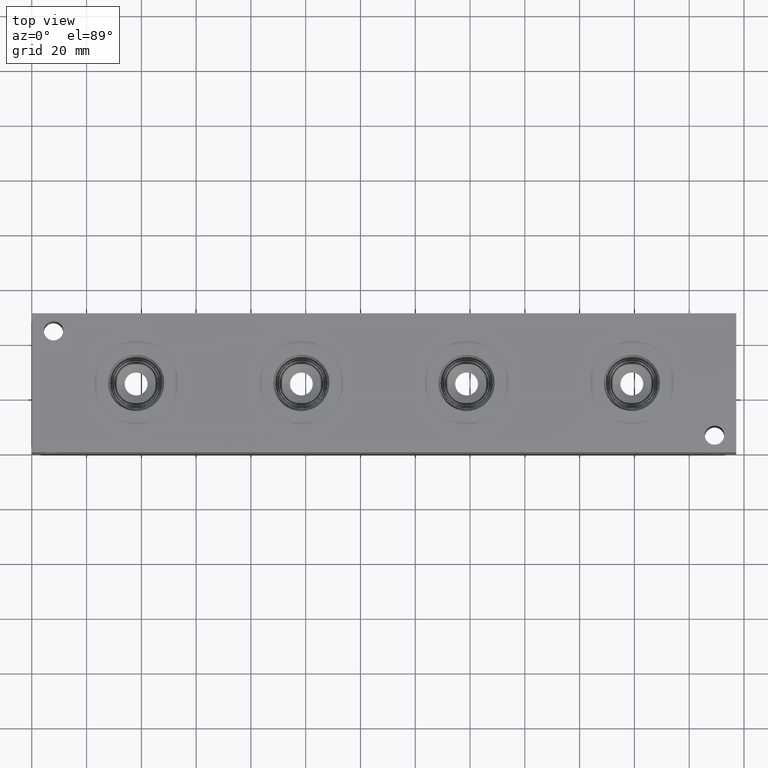
[diagram: clean part render]
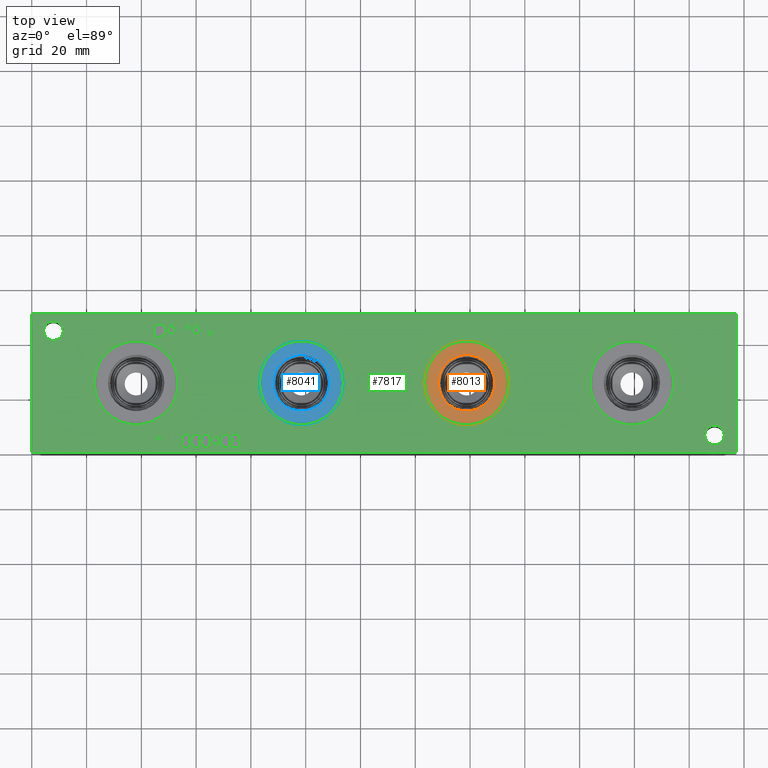
[diagram: same view with three faces highlighted in distinct colors, each labeled with its STEP entity id]
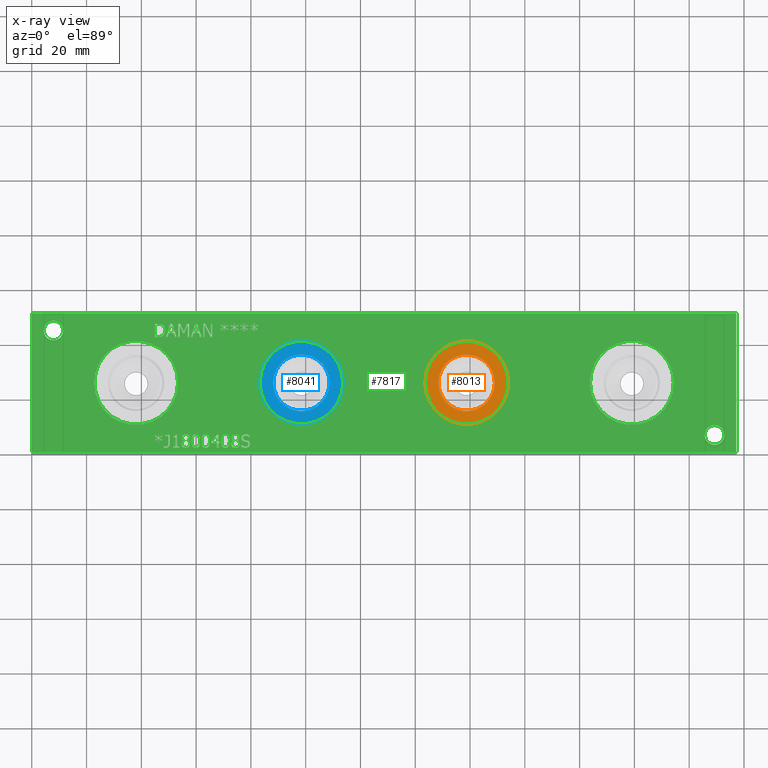
[diagram: x-ray of the same camera — body ghosted, the three highlighted faces saturated]
A machine part, top view with three faces highlighted in distinct colors.
The next image is the same camera in x-ray (body ghosted, the three faces saturated) — at least one of them is partly hidden behind the body in this view.
Their STEP definitions:

[orange] entity #8013 — the highlighted planar face has unit normal (0, 0, -1).
#194=CIRCLE('',#8431,15.3162);
#195=CIRCLE('',#8432,15.3162);
#196=CIRCLE('',#8434,10.2997);
#197=CIRCLE('',#8435,10.2997);
#314=FACE_BOUND('',#1384,.T.);
#550=PLANE('',#8433);
#923=FACE_OUTER_BOUND('',#1383,.T.);
#1383=EDGE_LOOP('',(#6949,#6950));
#1384=EDGE_LOOP('',(#6951,#6952));
#3802=VERTEX_POINT('',#13646);
#3803=VERTEX_POINT('',#13648);
#3804=VERTEX_POINT('',#13652);
#3805=VERTEX_POINT('',#13653);
#4871=EDGE_CURVE('',#3802,#3803,#194,.T.);
#4872=EDGE_CURVE('',#3803,#3802,#195,.T.);
#4873=EDGE_CURVE('',#3804,#3805,#196,.T.);
#4874=EDGE_CURVE('',#3805,#3804,#197,.T.);
#6949=ORIENTED_EDGE('',*,*,#4872,.F.);
#6950=ORIENTED_EDGE('',*,*,#4871,.F.);
#6951=ORIENTED_EDGE('',*,*,#4873,.T.);
#6952=ORIENTED_EDGE('',*,*,#4874,.T.);
#8013=ADVANCED_FACE('',(#923,#314),#550,.F.);
#8431=AXIS2_PLACEMENT_3D('',#13649,#9953,#9954);
#8432=AXIS2_PLACEMENT_3D('',#13650,#9955,#9956);
#8433=AXIS2_PLACEMENT_3D('',#13651,#9957,#9958);
#8434=AXIS2_PLACEMENT_3D('',#13654,#9959,#9960);
#8435=AXIS2_PLACEMENT_3D('',#13655,#9961,#9962);
#9953=DIRECTION('center_axis',(0.,0.,-1.));
#9954=DIRECTION('ref_axis',(1.,0.,0.));
#9955=DIRECTION('center_axis',(0.,0.,-1.));
#9956=DIRECTION('ref_axis',(1.,0.,0.));
#9957=DIRECTION('center_axis',(0.,0.,-1.));
#9958=DIRECTION('ref_axis',(-1.,0.,0.));
#9959=DIRECTION('center_axis',(0.,0.,-1.));
#9960=DIRECTION('ref_axis',(1.,0.,0.));
#9961=DIRECTION('center_axis',(0.,0.,-1.));
#9962=DIRECTION('ref_axis',(1.,0.,0.));
#13646=CARTESIAN_POINT('',(143.4338,25.4,50.0126));
#13648=CARTESIAN_POINT('',(174.0662,25.4,50.0126));
#13649=CARTESIAN_POINT('Origin',(158.75,25.4,50.0126));
#13650=CARTESIAN_POINT('Origin',(158.75,25.4,50.0126));
#13651=CARTESIAN_POINT('Origin',(169.0497,25.4,50.0126));
#13652=CARTESIAN_POINT('',(169.0497,25.4,50.0126));
#13653=CARTESIAN_POINT('',(148.4503,25.4,50.0126));
#13654=CARTESIAN_POINT('Origin',(158.75,25.4,50.0126));
#13655=CARTESIAN_POINT('Origin',(158.75,25.4,50.0126));

[blue] entity #8041 — the highlighted planar face has unit normal (0, 0, -1).
#237=CIRCLE('',#8502,15.3162);
#238=CIRCLE('',#8503,15.3162);
#239=CIRCLE('',#8505,10.2997);
#240=CIRCLE('',#8506,10.2997);
#319=FACE_BOUND('',#1417,.T.);
#555=PLANE('',#8504);
#951=FACE_OUTER_BOUND('',#1416,.T.);
#1416=EDGE_LOOP('',(#7087,#7088));
#1417=EDGE_LOOP('',(#7089,#7090));
#3845=VERTEX_POINT('',#13783);
#3846=VERTEX_POINT('',#13785);
#3847=VERTEX_POINT('',#13789);
#3848=VERTEX_POINT('',#13790);
#4937=EDGE_CURVE('',#3845,#3846,#237,.T.);
#4938=EDGE_CURVE('',#3846,#3845,#238,.T.);
#4939=EDGE_CURVE('',#3847,#3848,#239,.T.);
#4940=EDGE_CURVE('',#3848,#3847,#240,.T.);
#7087=ORIENTED_EDGE('',*,*,#4938,.F.);
#7088=ORIENTED_EDGE('',*,*,#4937,.F.);
#7089=ORIENTED_EDGE('',*,*,#4939,.T.);
#7090=ORIENTED_EDGE('',*,*,#4940,.T.);
#8041=ADVANCED_FACE('',(#951,#319),#555,.F.);
#8502=AXIS2_PLACEMENT_3D('',#13786,#10118,#10119);
#8503=AXIS2_PLACEMENT_3D('',#13787,#10120,#10121);
#8504=AXIS2_PLACEMENT_3D('',#13788,#10122,#10123);
#8505=AXIS2_PLACEMENT_3D('',#13791,#10124,#10125);
#8506=AXIS2_PLACEMENT_3D('',#13792,#10126,#10127);
#10118=DIRECTION('center_axis',(0.,0.,-1.));
#10119=DIRECTION('ref_axis',(1.,0.,0.));
#10120=DIRECTION('center_axis',(0.,0.,-1.));
#10121=DIRECTION('ref_axis',(1.,0.,0.));
#10122=DIRECTION('center_axis',(0.,0.,-1.));
#10123=DIRECTION('ref_axis',(-1.,0.,0.));
#10124=DIRECTION('center_axis',(0.,0.,-1.));
#10125=DIRECTION('ref_axis',(1.,0.,0.));
#10126=DIRECTION('center_axis',(0.,0.,-1.));
#10127=DIRECTION('ref_axis',(1.,0.,0.));
#13783=CARTESIAN_POINT('',(83.1088,25.4,50.0126));
#13785=CARTESIAN_POINT('',(113.7412,25.4,50.0126));
#13786=CARTESIAN_POINT('Origin',(98.425,25.4,50.0126));
#13787=CARTESIAN_POINT('Origin',(98.425,25.4,50.0126));
#13788=CARTESIAN_POINT('Origin',(108.7247,25.4,50.0126));
#13789=CARTESIAN_POINT('',(108.7247,25.4,50.0126));
#13790=CARTESIAN_POINT('',(88.1253,25.4,50.0126));
#13791=CARTESIAN_POINT('Origin',(98.425,25.4,50.0126));
#13792=CARTESIAN_POINT('Origin',(98.425,25.4,50.0126));

[green] entity #7817 — the highlighted planar face has unit normal (0, 0, 1).
#102=CIRCLE('',#8152,15.3162);
#103=CIRCLE('',#8153,15.3162);
#104=CIRCLE('',#8154,3.5687);
#105=CIRCLE('',#8155,3.5687);
#106=CIRCLE('',#8156,3.5687);
#107=CIRCLE('',#8157,3.5687);
#108=CIRCLE('',#8158,15.3162);
#109=CIRCLE('',#8159,15.3162);
#110=CIRCLE('',#8160,15.3162);
#111=CIRCLE('',#8161,15.3162);
#112=CIRCLE('',#8162,15.3162);
#113=CIRCLE('',#8163,15.3162);
#278=FACE_BOUND('',#1152,.T.);
#279=FACE_BOUND('',#1153,.T.);
#280=FACE_BOUND('',#1154,.T.);
#281=FACE_BOUND('',#1155,.T.);
#282=FACE_BOUND('',#1156,.T.);
#283=FACE_BOUND('',#1157,.T.);
#284=FACE_BOUND('',#1158,.T.);
#285=FACE_BOUND('',#1159,.T.);
#286=FACE_BOUND('',#1160,.T.);
#287=FACE_BOUND('',#1161,.T.);
#288=FACE_BOUND('',#1162,.T.);
#289=FACE_BOUND('',#1163,.T.);
#290=FACE_BOUND('',#1164,.T.);
#291=FACE_BOUND('',#1165,.T.);
#292=FACE_BOUND('',#1166,.T.);
#293=FACE_BOUND('',#1167,.T.);
#294=FACE_BOUND('',#1168,.T.);
#295=FACE_BOUND('',#1169,.T.);
#296=FACE_BOUND('',#1170,.T.);
#297=FACE_BOUND('',#1171,.T.);
#298=FACE_BOUND('',#1172,.T.);
#299=FACE_BOUND('',#1173,.T.);
#300=FACE_BOUND('',#1174,.T.);
#301=FACE_BOUND('',#1175,.T.);
#302=FACE_BOUND('',#1176,.T.);
#399=PLANE('',#8151);
#727=FACE_OUTER_BOUND('',#1151,.T.);
#1151=EDGE_LOOP('',(#5771,#5772,#5773,#5774));
#1152=EDGE_LOOP('',(#5775,#5776,#5777,#5778,#5779,#5780,#5781,#5782,#5783,
#5784,#5785));
#1153=EDGE_LOOP('',(#5786,#5787,#5788,#5789));
#1154=EDGE_LOOP('',(#5790,#5791,#5792,#5793,#5794,#5795,#5796,#5797,#5798,
#5799,#5800));
#1155=EDGE_LOOP('',(#5801,#5802,#5803,#5804));
#1156=EDGE_LOOP('',(#5805,#5806,#5807,#5808));
#1157=EDGE_LOOP('',(#5809,#5810,#5811,#5812,#5813,#5814,#5815,#5816,#5817,
#5818,#5819));
#1158=EDGE_LOOP('',(#5820,#5821,#5822,#5823,#5824,#5825,#5826,#5827,#5828,
#5829,#5830,#5831,#5832,#5833,#5834,#5835,#5836,#5837));
#1159=EDGE_LOOP('',(#5838,#5839,#5840,#5841,#5842,#5843,#5844,#5845,#5846,
#5847,#5848,#5849));
#1160=EDGE_LOOP('',(#5850,#5851,#5852,#5853,#5854,#5855,#5856,#5857,#5858,
#5859,#5860));
#1161=EDGE_LOOP('',(#5861,#5862,#5863,#5864,#5865,#5866,#5867,#5868,#5869,
#5870,#5871,#5872,#5873,#5874,#5875,#5876,#5877,#5878,#5879,#5880));
#1162=EDGE_LOOP('',(#5881,#5882));
#1163=EDGE_LOOP('',(#5883,#5884));
#1164=EDGE_LOOP('',(#5885,#5886));
#1165=EDGE_LOOP('',(#5887,#5888));
#1166=EDGE_LOOP('',(#5889,#5890));
#1167=EDGE_LOOP('',(#5891,#5892));
#1168=EDGE_LOOP('',(#5893,#5894,#5895,#5896,#5897,#5898,#5899,#5900,#5901,
#5902,#5903,#5904,#5905,#5906,#5907,#5908,#5909,#5910));
#1169=EDGE_LOOP('',(#5911,#5912,#5913,#5914,#5915,#5916,#5917,#5918,#5919,
#5920,#5921,#5922,#5923,#5924,#5925,#5926,#5927,#5928));
#1170=EDGE_LOOP('',(#5929,#5930,#5931,#5932,#5933,#5934,#5935,#5936,#5937,
#5938));
#1171=EDGE_LOOP('',(#5939,#5940,#5941,#5942,#5943,#5944,#5945,#5946));
#1172=EDGE_LOOP('',(#5947,#5948,#5949,#5950,#5951,#5952,#5953));
#1173=EDGE_LOOP('',(#5954,#5955,#5956,#5957,#5958,#5959,#5960,#5961));
#1174=EDGE_LOOP('',(#5962,#5963,#5964,#5965,#5966,#5967,#5968,#5969,#5970,
#5971,#5972,#5973,#5974));
#1175=EDGE_LOOP('',(#5975,#5976,#5977,#5978,#5979,#5980,#5981,#5982,#5983,
#5984,#5985,#5986,#5987,#5988,#5989,#5990,#5991,#5992));
#1176=EDGE_LOOP('',(#5993,#5994,#5995,#5996,#5997,#5998,#5999,#6000,#6001,
#6002,#6003,#6004,#6005,#6006,#6007,#6008,#6009,#6010));
#1471=LINE('',#10520,#2207);
#1478=LINE('',#10602,#2214);
#1504=LINE('',#10911,#2240);
#1508=LINE('',#10919,#2244);
#1511=LINE('',#10925,#2247);
#1514=LINE('',#10931,#2250);
#1517=LINE('',#10937,#2253);
#1520=LINE('',#10943,#2256);
#1523=LINE('',#10949,#2259);
#1526=LINE('',#10955,#2262);
#1529=LINE('',#10961,#2265);
#1532=LINE('',#10967,#2268);
#1535=LINE('',#10972,#2271);
#1561=LINE('',#11436,#2297);
#1565=LINE('',#11444,#2301);
#1568=LINE('',#11450,#2304);
#1571=LINE('',#11456,#2307);
#1575=LINE('',#11481,#2311);
#1578=LINE('',#11487,#2314);
#1581=LINE('',#11493,#2317);
#1584=LINE('',#11499,#2320);
#1587=LINE('',#11505,#2323);
#1590=LINE('',#11510,#2326);
#1592=LINE('',#11516,#2328);
#1596=LINE('',#11524,#2332);
#1599=LINE('',#11530,#2335);
#1602=LINE('',#11536,#2338);
#1605=LINE('',#11542,#2341);
#1608=LINE('',#11548,#2344);
#1611=LINE('',#11554,#2347);
#1614=LINE('',#11560,#2350);
#1617=LINE('',#11566,#2353);
#1620=LINE('',#11572,#2356);
#1623=LINE('',#11578,#2359);
#1626=LINE('',#11584,#2362);
#1629=LINE('',#11590,#2365);
#1632=LINE('',#11596,#2368);
#1635=LINE('',#11602,#2371);
#1638=LINE('',#11608,#2374);
#1641=LINE('',#11614,#2377);
#1644=LINE('',#11619,#2380);
#1646=LINE('',#11625,#2382);
#1650=LINE('',#11633,#2386);
#1653=LINE('',#11639,#2389);
#1656=LINE('',#11645,#2392);
#1659=LINE('',#11651,#2395);
#1665=LINE('',#11714,#2401);
#1668=LINE('',#11720,#2404);
#1685=LINE('',#11993,#2421);
#1692=LINE('',#12075,#2428);
#1705=LINE('',#12272,#2441);
#1708=LINE('',#12278,#2444);
#1719=LINE('',#12436,#2455);
#1722=LINE('',#12442,#2458);
#1725=LINE('',#12466,#2461);
#1726=LINE('',#12468,#2462);
#1727=LINE('',#12470,#2463);
#1728=LINE('',#12471,#2464);
#1729=LINE('',#12498,#2465);
#1730=LINE('',#12500,#2466);
#1731=LINE('',#12502,#2467);
#1732=LINE('',#12504,#2468);
#1733=LINE('',#12506,#2469);
#1734=LINE('',#12508,#2470);
#1735=LINE('',#12510,#2471);
#1736=LINE('',#12512,#2472);
#1737=LINE('',#12514,#2473);
#1738=LINE('',#12516,#2474);
#1739=LINE('',#12518,#2475);
#1740=LINE('',#12520,#2476);
#1741=LINE('',#12522,#2477);
#1742=LINE('',#12524,#2478);
#1743=LINE('',#12526,#2479);
#1744=LINE('',#12528,#2480);
#1745=LINE('',#12530,#2481);
#1746=LINE('',#12531,#2482);
#1747=LINE('',#12534,#2483);
#1748=LINE('',#12536,#2484);
#1749=LINE('',#12538,#2485);
#1750=LINE('',#12540,#2486);
#1751=LINE('',#12542,#2487);
#1752=LINE('',#12544,#2488);
#1753=LINE('',#12546,#2489);
#1754=LINE('',#12548,#2490);
#1755=LINE('',#12550,#2491);
#1756=LINE('',#12552,#2492);
#1757=LINE('',#12554,#2493);
#1758=LINE('',#12556,#2494);
#1759=LINE('',#12558,#2495);
#1760=LINE('',#12560,#2496);
#1761=LINE('',#12562,#2497);
#1762=LINE('',#12564,#2498);
#1763=LINE('',#12566,#2499);
#1764=LINE('',#12567,#2500);
#1765=LINE('',#12570,#2501);
#1766=LINE('',#12572,#2502);
#1767=LINE('',#12574,#2503);
#1768=LINE('',#12576,#2504);
#1769=LINE('',#12578,#2505);
#1770=LINE('',#12580,#2506);
#1771=LINE('',#12582,#2507);
#1772=LINE('',#12584,#2508);
#1773=LINE('',#12586,#2509);
#1774=LINE('',#12587,#2510);
#1775=LINE('',#12590,#2511);
#1776=LINE('',#12592,#2512);
#1777=LINE('',#12594,#2513);
#1778=LINE('',#12596,#2514);
#1779=LINE('',#12598,#2515);
#1780=LINE('',#12600,#2516);
#1781=LINE('',#12602,#2517);
#1782=LINE('',#12603,#2518);
#1783=LINE('',#12621,#2519);
#1784=LINE('',#12623,#2520);
#1785=LINE('',#12625,#2521);
#1786=LINE('',#12632,#2522);
#1787=LINE('',#12634,#2523);
#1788=LINE('',#12636,#2524);
#1789=LINE('',#12638,#2525);
#1790=LINE('',#12640,#2526);
#1791=LINE('',#12642,#2527);
#1792=LINE('',#12644,#2528);
#1793=LINE('',#12645,#2529);
#1794=LINE('',#12648,#2530);
#1795=LINE('',#12650,#2531);
#1796=LINE('',#12652,#2532);
#1797=LINE('',#12654,#2533);
#1798=LINE('',#12656,#2534);
#1799=LINE('',#12658,#2535);
#1800=LINE('',#12660,#2536);
#1801=LINE('',#12662,#2537);
#1802=LINE('',#12664,#2538);
#1803=LINE('',#12666,#2539);
#1804=LINE('',#12668,#2540);
#1805=LINE('',#12670,#2541);
#1806=LINE('',#12671,#2542);
#1807=LINE('',#12674,#2543);
#1808=LINE('',#12676,#2544);
#1809=LINE('',#12678,#2545);
#1810=LINE('',#12680,#2546);
#1811=LINE('',#12682,#2547);
#1812=LINE('',#12684,#2548);
#1813=LINE('',#12686,#2549);
#1814=LINE('',#12688,#2550);
#1815=LINE('',#12690,#2551);
#1816=LINE('',#12692,#2552);
#1817=LINE('',#12694,#2553);
#1818=LINE('',#12696,#2554);
#1819=LINE('',#12698,#2555);
#1820=LINE('',#12700,#2556);
#1821=LINE('',#12702,#2557);
#1822=LINE('',#12704,#2558);
#1823=LINE('',#12706,#2559);
#1824=LINE('',#12707,#2560);
#1825=LINE('',#12710,#2561);
#1826=LINE('',#12712,#2562);
#1827=LINE('',#12714,#2563);
#1828=LINE('',#12716,#2564);
#1829=LINE('',#12718,#2565);
#1830=LINE('',#12720,#2566);
#1831=LINE('',#12722,#2567);
#1832=LINE('',#12724,#2568);
#1833=LINE('',#12726,#2569);
#1834=LINE('',#12728,#2570);
#1835=LINE('',#12730,#2571);
#1836=LINE('',#12732,#2572);
#1837=LINE('',#12734,#2573);
#1838=LINE('',#12736,#2574);
#1839=LINE('',#12738,#2575);
#1840=LINE('',#12740,#2576);
#1841=LINE('',#12742,#2577);
#1842=LINE('',#12743,#2578);
#2207=VECTOR('',#8589,10.);
#2214=VECTOR('',#8598,10.);
#2240=VECTOR('',#8636,10.);
#2244=VECTOR('',#8642,10.);
#2247=VECTOR('',#8647,10.);
#2250=VECTOR('',#8652,10.);
#2253=VECTOR('',#8657,10.);
#2256=VECTOR('',#8662,10.);
#2259=VECTOR('',#8667,10.);
#2262=VECTOR('',#8672,10.);
#2265=VECTOR('',#8677,10.);
#2268=VECTOR('',#8682,10.);
#2271=VECTOR('',#8687,10.);
#2297=VECTOR('',#8721,10.);
#2301=VECTOR('',#8727,10.);
#2304=VECTOR('',#8732,10.);
#2307=VECTOR('',#8737,10.);
#2311=VECTOR('',#8743,10.);
#2314=VECTOR('',#8748,10.);
#2317=VECTOR('',#8753,10.);
#2320=VECTOR('',#8758,10.);
#2323=VECTOR('',#8763,10.);
#2326=VECTOR('',#8768,10.);
#2328=VECTOR('',#8774,10.);
#2332=VECTOR('',#8780,10.);
#2335=VECTOR('',#8785,10.);
#2338=VECTOR('',#8790,10.);
#2341=VECTOR('',#8795,10.);
#2344=VECTOR('',#8800,10.);
#2347=VECTOR('',#8805,10.);
#2350=VECTOR('',#8810,10.);
#2353=VECTOR('',#8815,10.);
#2356=VECTOR('',#8820,10.);
#2359=VECTOR('',#8825,10.);
#2362=VECTOR('',#8830,10.);
#2365=VECTOR('',#8835,10.);
#2368=VECTOR('',#8840,10.);
#2371=VECTOR('',#8845,10.);
#2374=VECTOR('',#8850,10.);
#2377=VECTOR('',#8855,10.);
#2380=VECTOR('',#8860,10.);
#2382=VECTOR('',#8866,10.);
#2386=VECTOR('',#8872,10.);
#2389=VECTOR('',#8877,10.);
#2392=VECTOR('',#8882,10.);
#2395=VECTOR('',#8887,10.);
#2401=VECTOR('',#8895,10.);
#2404=VECTOR('',#8900,10.);
#2421=VECTOR('',#8921,10.);
#2428=VECTOR('',#8930,10.);
#2441=VECTOR('',#8947,10.);
#2444=VECTOR('',#8952,10.);
#2455=VECTOR('',#8965,10.);
#2458=VECTOR('',#8970,10.);
#2461=VECTOR('',#8977,10.);
#2462=VECTOR('',#8978,10.);
#2463=VECTOR('',#8979,10.);
#2464=VECTOR('',#8980,10.);
#2465=VECTOR('',#9005,10.);
#2466=VECTOR('',#9006,10.);
#2467=VECTOR('',#9007,10.);
#2468=VECTOR('',#9008,10.);
#2469=VECTOR('',#9009,10.);
#2470=VECTOR('',#9010,10.);
#2471=VECTOR('',#9011,10.);
#2472=VECTOR('',#9012,10.);
#2473=VECTOR('',#9013,10.);
#2474=VECTOR('',#9014,10.);
#2475=VECTOR('',#9015,10.);
#2476=VECTOR('',#9016,10.);
#2477=VECTOR('',#9017,10.);
#2478=VECTOR('',#9018,10.);
#2479=VECTOR('',#9019,10.);
#2480=VECTOR('',#9020,10.);
#2481=VECTOR('',#9021,10.);
#2482=VECTOR('',#9022,10.);
#2483=VECTOR('',#9023,10.);
#2484=VECTOR('',#9024,10.);
#2485=VECTOR('',#9025,10.);
#2486=VECTOR('',#9026,10.);
#2487=VECTOR('',#9027,10.);
#2488=VECTOR('',#9028,10.);
#2489=VECTOR('',#9029,10.);
#2490=VECTOR('',#9030,10.);
#2491=VECTOR('',#9031,10.);
#2492=VECTOR('',#9032,10.);
#2493=VECTOR('',#9033,10.);
#2494=VECTOR('',#9034,10.);
#2495=VECTOR('',#9035,10.);
#2496=VECTOR('',#9036,10.);
#2497=VECTOR('',#9037,10.);
#2498=VECTOR('',#9038,10.);
#2499=VECTOR('',#9039,10.);
#2500=VECTOR('',#9040,10.);
#2501=VECTOR('',#9041,10.);
#2502=VECTOR('',#9042,10.);
#2503=VECTOR('',#9043,10.);
#2504=VECTOR('',#9044,10.);
#2505=VECTOR('',#9045,10.);
#2506=VECTOR('',#9046,10.);
#2507=VECTOR('',#9047,10.);
#2508=VECTOR('',#9048,10.);
#2509=VECTOR('',#9049,10.);
#2510=VECTOR('',#9050,10.);
#2511=VECTOR('',#9051,10.);
#2512=VECTOR('',#9052,10.);
#2513=VECTOR('',#9053,10.);
#2514=VECTOR('',#9054,10.);
#2515=VECTOR('',#9055,10.);
#2516=VECTOR('',#9056,10.);
#2517=VECTOR('',#9057,10.);
#2518=VECTOR('',#9058,10.);
#2519=VECTOR('',#9059,10.);
#2520=VECTOR('',#9060,10.);
#2521=VECTOR('',#9061,10.);
#2522=VECTOR('',#9062,10.);
#2523=VECTOR('',#9063,10.);
#2524=VECTOR('',#9064,10.);
#2525=VECTOR('',#9065,10.);
#2526=VECTOR('',#9066,10.);
#2527=VECTOR('',#9067,10.);
#2528=VECTOR('',#9068,10.);
#2529=VECTOR('',#9069,10.);
#2530=VECTOR('',#9070,10.);
#2531=VECTOR('',#9071,10.);
#2532=VECTOR('',#9072,10.);
#2533=VECTOR('',#9073,10.);
#2534=VECTOR('',#9074,10.);
#2535=VECTOR('',#9075,10.);
#2536=VECTOR('',#9076,10.);
#2537=VECTOR('',#9077,10.);
#2538=VECTOR('',#9078,10.);
#2539=VECTOR('',#9079,10.);
#2540=VECTOR('',#9080,10.);
#2541=VECTOR('',#9081,10.);
#2542=VECTOR('',#9082,10.);
#2543=VECTOR('',#9083,10.);
#2544=VECTOR('',#9084,10.);
#2545=VECTOR('',#9085,10.);
#2546=VECTOR('',#9086,10.);
#2547=VECTOR('',#9087,10.);
#2548=VECTOR('',#9088,10.);
#2549=VECTOR('',#9089,10.);
#2550=VECTOR('',#9090,10.);
#2551=VECTOR('',#9091,10.);
#2552=VECTOR('',#9092,10.);
#2553=VECTOR('',#9093,10.);
#2554=VECTOR('',#9094,10.);
#2555=VECTOR('',#9095,10.);
#2556=VECTOR('',#9096,10.);
#2557=VECTOR('',#9097,10.);
#2558=VECTOR('',#9098,10.);
#2559=VECTOR('',#9099,10.);
#2560=VECTOR('',#9100,10.);
#2561=VECTOR('',#9101,10.);
#2562=VECTOR('',#9102,10.);
#2563=VECTOR('',#9103,10.);
#2564=VECTOR('',#9104,10.);
#2565=VECTOR('',#9105,10.);
#2566=VECTOR('',#9106,10.);
#2567=VECTOR('',#9107,10.);
#2568=VECTOR('',#9108,10.);
#2569=VECTOR('',#9109,10.);
#2570=VECTOR('',#9110,10.);
#2571=VECTOR('',#9111,10.);
#2572=VECTOR('',#9112,10.);
#2573=VECTOR('',#9113,10.);
#2574=VECTOR('',#9114,10.);
#2575=VECTOR('',#9115,10.);
#2576=VECTOR('',#9116,10.);
#2577=VECTOR('',#9117,10.);
#2578=VECTOR('',#9118,10.);
#2950=B_SPLINE_CURVE_WITH_KNOTS('',2,(#10487,#10488,#10489,#10490),
 .UNSPECIFIED.,.F.,.F.,(3,1,3),(0.,1.,2.),.UNSPECIFIED.);
#2952=B_SPLINE_CURVE_WITH_KNOTS('',2,(#10508,#10509,#10510,#10511),
 .UNSPECIFIED.,.F.,.F.,(3,1,3),(0.,1.,2.),.UNSPECIFIED.);
#2954=B_SPLINE_CURVE_WITH_KNOTS('',2,(#10533,#10534,#10535,#10536),
 .UNSPECIFIED.,.F.,.F.,(3,1,3),(0.,1.,2.),.UNSPECIFIED.);
#2956=B_SPLINE_CURVE_WITH_KNOTS('',2,(#10552,#10553,#10554,#10555),
 .UNSPECIFIED.,.F.,.F.,(3,1,3),(0.,1.,2.),.UNSPECIFIED.);
#2958=B_SPLINE_CURVE_WITH_KNOTS('',2,(#10571,#10572,#10573,#10574),
 .UNSPECIFIED.,.F.,.F.,(3,1,3),(0.,1.,2.),.UNSPECIFIED.);
#2960=B_SPLINE_CURVE_WITH_KNOTS('',2,(#10590,#10591,#10592,#10593),
 .UNSPECIFIED.,.F.,.F.,(3,1,3),(0.,1.,2.),.UNSPECIFIED.);
#2962=B_SPLINE_CURVE_WITH_KNOTS('',2,(#10615,#10616,#10617,#10618),
 .UNSPECIFIED.,.F.,.F.,(3,1,3),(0.,1.,2.),.UNSPECIFIED.);
#2964=B_SPLINE_CURVE_WITH_KNOTS('',2,(#10634,#10635,#10636,#10637),
 .UNSPECIFIED.,.F.,.F.,(3,1,3),(0.,1.,2.),.UNSPECIFIED.);
#2966=B_SPLINE_CURVE_WITH_KNOTS('',2,(#10652,#10653,#10654,#10655),
 .UNSPECIFIED.,.F.,.F.,(3,1,3),(0.,1.,2.),.UNSPECIFIED.);
#2984=B_SPLINE_CURVE_WITH_KNOTS('',2,(#10823,#10824,#10825,#10826),
 .UNSPECIFIED.,.F.,.F.,(3,1,3),(0.,1.,2.),.UNSPECIFIED.);
#2986=B_SPLINE_CURVE_WITH_KNOTS('',2,(#10844,#10845,#10846,#10847),
 .UNSPECIFIED.,.F.,.F.,(3,1,3),(0.,1.,2.),.UNSPECIFIED.);
#2988=B_SPLINE_CURVE_WITH_KNOTS('',2,(#10863,#10864,#10865,#10866),
 .UNSPECIFIED.,.F.,.F.,(3,1,3),(0.,1.,2.),.UNSPECIFIED.);
#2990=B_SPLINE_CURVE_WITH_KNOTS('',2,(#10881,#10882,#10883,#10884),
 .UNSPECIFIED.,.F.,.F.,(3,1,3),(0.,1.,2.),.UNSPECIFIED.);
#3008=B_SPLINE_CURVE_WITH_KNOTS('',2,(#11137,#11138,#11139,#11140),
 .UNSPECIFIED.,.F.,.F.,(3,1,3),(0.,1.,2.),.UNSPECIFIED.);
#3010=B_SPLINE_CURVE_WITH_KNOTS('',2,(#11158,#11159,#11160,#11161),
 .UNSPECIFIED.,.F.,.F.,(3,1,3),(0.,1.,2.),.UNSPECIFIED.);
#3012=B_SPLINE_CURVE_WITH_KNOTS('',2,(#11177,#11178,#11179,#11180),
 .UNSPECIFIED.,.F.,.F.,(3,1,3),(0.,1.,2.),.UNSPECIFIED.);
#3014=B_SPLINE_CURVE_WITH_KNOTS('',2,(#11195,#11196,#11197,#11198),
 .UNSPECIFIED.,.F.,.F.,(3,1,3),(0.,1.,2.),.UNSPECIFIED.);
#3032=B_SPLINE_CURVE_WITH_KNOTS('',2,(#11366,#11367,#11368,#11369),
 .UNSPECIFIED.,.F.,.F.,(3,1,3),(0.,1.,2.),.UNSPECIFIED.);
#3034=B_SPLINE_CURVE_WITH_KNOTS('',2,(#11387,#11388,#11389,#11390),
 .UNSPECIFIED.,.F.,.F.,(3,1,3),(0.,1.,2.),.UNSPECIFIED.);
#3036=B_SPLINE_CURVE_WITH_KNOTS('',2,(#11406,#11407,#11408,#11409),
 .UNSPECIFIED.,.F.,.F.,(3,1,3),(0.,1.,2.),.UNSPECIFIED.);
#3038=B_SPLINE_CURVE_WITH_KNOTS('',2,(#11424,#11425,#11426,#11427),
 .UNSPECIFIED.,.F.,.F.,(3,1,3),(0.,1.,2.),.UNSPECIFIED.);
#3040=B_SPLINE_CURVE_WITH_KNOTS('',2,(#11469,#11470,#11471,#11472),
 .UNSPECIFIED.,.F.,.F.,(3,1,3),(0.,1.,2.),.UNSPECIFIED.);
#3042=B_SPLINE_CURVE_WITH_KNOTS('',2,(#11664,#11665,#11666,#11667),
 .UNSPECIFIED.,.F.,.F.,(3,1,3),(0.,1.,2.),.UNSPECIFIED.);
#3044=B_SPLINE_CURVE_WITH_KNOTS('',2,(#11683,#11684,#11685,#11686),
 .UNSPECIFIED.,.F.,.F.,(3,1,3),(0.,1.,2.),.UNSPECIFIED.);
#3046=B_SPLINE_CURVE_WITH_KNOTS('',2,(#11702,#11703,#11704,#11705),
 .UNSPECIFIED.,.F.,.F.,(3,1,3),(0.,1.,2.),.UNSPECIFIED.);
#3048=B_SPLINE_CURVE_WITH_KNOTS('',2,(#11733,#11734,#11735,#11736),
 .UNSPECIFIED.,.F.,.F.,(3,1,3),(0.,1.,2.),.UNSPECIFIED.);
#3050=B_SPLINE_CURVE_WITH_KNOTS('',2,(#11751,#11752,#11753,#11754),
 .UNSPECIFIED.,.F.,.F.,(3,1,3),(0.,1.,2.),.UNSPECIFIED.);
#3072=B_SPLINE_CURVE_WITH_KNOTS('',2,(#11960,#11961,#11962,#11963),
 .UNSPECIFIED.,.F.,.F.,(3,1,3),(0.,1.,2.),.UNSPECIFIED.);
#3074=B_SPLINE_CURVE_WITH_KNOTS('',2,(#11981,#11982,#11983,#11984),
 .UNSPECIFIED.,.F.,.F.,(3,1,3),(0.,1.,2.),.UNSPECIFIED.);
#3076=B_SPLINE_CURVE_WITH_KNOTS('',2,(#12006,#12007,#12008,#12009),
 .UNSPECIFIED.,.F.,.F.,(3,1,3),(0.,1.,2.),.UNSPECIFIED.);
#3078=B_SPLINE_CURVE_WITH_KNOTS('',2,(#12025,#12026,#12027,#12028),
 .UNSPECIFIED.,.F.,.F.,(3,1,3),(0.,1.,2.),.UNSPECIFIED.);
#3080=B_SPLINE_CURVE_WITH_KNOTS('',2,(#12044,#12045,#12046,#12047),
 .UNSPECIFIED.,.F.,.F.,(3,1,3),(0.,1.,2.),.UNSPECIFIED.);
#3082=B_SPLINE_CURVE_WITH_KNOTS('',2,(#12063,#12064,#12065,#12066),
 .UNSPECIFIED.,.F.,.F.,(3,1,3),(0.,1.,2.),.UNSPECIFIED.);
#3084=B_SPLINE_CURVE_WITH_KNOTS('',2,(#12088,#12089,#12090,#12091),
 .UNSPECIFIED.,.F.,.F.,(3,1,3),(0.,1.,2.),.UNSPECIFIED.);
#3086=B_SPLINE_CURVE_WITH_KNOTS('',2,(#12107,#12108,#12109,#12110),
 .UNSPECIFIED.,.F.,.F.,(3,1,3),(0.,1.,2.),.UNSPECIFIED.);
#3088=B_SPLINE_CURVE_WITH_KNOTS('',2,(#12125,#12126,#12127,#12128),
 .UNSPECIFIED.,.F.,.F.,(3,1,3),(0.,1.,2.),.UNSPECIFIED.);
#3090=B_SPLINE_CURVE_WITH_KNOTS('',2,(#12144,#12145,#12146,#12147),
 .UNSPECIFIED.,.F.,.F.,(3,1,3),(0.,1.,2.),.UNSPECIFIED.);
#3092=B_SPLINE_CURVE_WITH_KNOTS('',2,(#12165,#12166,#12167,#12168),
 .UNSPECIFIED.,.F.,.F.,(3,1,3),(0.,1.,2.),.UNSPECIFIED.);
#3094=B_SPLINE_CURVE_WITH_KNOTS('',2,(#12184,#12185,#12186,#12187),
 .UNSPECIFIED.,.F.,.F.,(3,1,3),(0.,1.,2.),.UNSPECIFIED.);
#3096=B_SPLINE_CURVE_WITH_KNOTS('',2,(#12203,#12204,#12205,#12206),
 .UNSPECIFIED.,.F.,.F.,(3,1,3),(0.,1.,2.),.UNSPECIFIED.);
#3098=B_SPLINE_CURVE_WITH_KNOTS('',2,(#12222,#12223,#12224,#12225),
 .UNSPECIFIED.,.F.,.F.,(3,1,3),(0.,1.,2.),.UNSPECIFIED.);
#3100=B_SPLINE_CURVE_WITH_KNOTS('',2,(#12241,#12242,#12243,#12244),
 .UNSPECIFIED.,.F.,.F.,(3,1,3),(0.,1.,2.),.UNSPECIFIED.);
#3102=B_SPLINE_CURVE_WITH_KNOTS('',2,(#12260,#12261,#12262,#12263),
 .UNSPECIFIED.,.F.,.F.,(3,1,3),(0.,1.,2.),.UNSPECIFIED.);
#3104=B_SPLINE_CURVE_WITH_KNOTS('',2,(#12291,#12292,#12293,#12294),
 .UNSPECIFIED.,.F.,.F.,(3,1,3),(0.,1.,2.),.UNSPECIFIED.);
#3106=B_SPLINE_CURVE_WITH_KNOTS('',2,(#12310,#12311,#12312,#12313),
 .UNSPECIFIED.,.F.,.F.,(3,1,3),(0.,1.,2.),.UNSPECIFIED.);
#3108=B_SPLINE_CURVE_WITH_KNOTS('',2,(#12329,#12330,#12331,#12332),
 .UNSPECIFIED.,.F.,.F.,(3,1,3),(0.,1.,2.),.UNSPECIFIED.);
#3110=B_SPLINE_CURVE_WITH_KNOTS('',2,(#12348,#12349,#12350,#12351),
 .UNSPECIFIED.,.F.,.F.,(3,1,3),(0.,1.,2.),.UNSPECIFIED.);
#3112=B_SPLINE_CURVE_WITH_KNOTS('',2,(#12367,#12368,#12369,#12370),
 .UNSPECIFIED.,.F.,.F.,(3,1,3),(0.,1.,2.),.UNSPECIFIED.);
#3114=B_SPLINE_CURVE_WITH_KNOTS('',2,(#12386,#12387,#12388,#12389),
 .UNSPECIFIED.,.F.,.F.,(3,1,3),(0.,1.,2.),.UNSPECIFIED.);
#3116=B_SPLINE_CURVE_WITH_KNOTS('',2,(#12405,#12406,#12407,#12408),
 .UNSPECIFIED.,.F.,.F.,(3,1,3),(0.,1.,2.),.UNSPECIFIED.);
#3118=B_SPLINE_CURVE_WITH_KNOTS('',2,(#12424,#12425,#12426,#12427),
 .UNSPECIFIED.,.F.,.F.,(3,1,3),(0.,1.,2.),.UNSPECIFIED.);
#3120=B_SPLINE_CURVE_WITH_KNOTS('',2,(#12454,#12455,#12456,#12457),
 .UNSPECIFIED.,.F.,.F.,(3,1,3),(0.,1.,2.),.UNSPECIFIED.);
#3122=B_SPLINE_CURVE_WITH_KNOTS('',2,(#12606,#12607,#12608,#12609),
 .UNSPECIFIED.,.F.,.F.,(3,1,3),(0.,1.,2.),.UNSPECIFIED.);
#3123=B_SPLINE_CURVE_WITH_KNOTS('',2,(#12611,#12612,#12613,#12614),
 .UNSPECIFIED.,.F.,.F.,(3,1,3),(0.,1.,2.),.UNSPECIFIED.);
#3124=B_SPLINE_CURVE_WITH_KNOTS('',2,(#12616,#12617,#12618,#12619),
 .UNSPECIFIED.,.F.,.F.,(3,1,3),(0.,1.,2.),.UNSPECIFIED.);
#3125=B_SPLINE_CURVE_WITH_KNOTS('',2,(#12626,#12627,#12628,#12629),
 .UNSPECIFIED.,.F.,.F.,(3,1,3),(0.,1.,2.),.UNSPECIFIED.);
#3158=VERTEX_POINT('',#10485);
#3159=VERTEX_POINT('',#10486);
#3162=VERTEX_POINT('',#10507);
#3164=VERTEX_POINT('',#10519);
#3166=VERTEX_POINT('',#10532);
#3168=VERTEX_POINT('',#10551);
#3170=VERTEX_POINT('',#10570);
#3172=VERTEX_POINT('',#10589);
#3174=VERTEX_POINT('',#10601);
#3176=VERTEX_POINT('',#10614);
#3178=VERTEX_POINT('',#10633);
#3196=VERTEX_POINT('',#10821);
#3197=VERTEX_POINT('',#10822);
#3200=VERTEX_POINT('',#10843);
#3202=VERTEX_POINT('',#10862);
#3210=VERTEX_POINT('',#10909);
#3211=VERTEX_POINT('',#10910);
#3214=VERTEX_POINT('',#10918);
#3216=VERTEX_POINT('',#10924);
#3218=VERTEX_POINT('',#10930);
#3220=VERTEX_POINT('',#10936);
#3222=VERTEX_POINT('',#10942);
#3224=VERTEX_POINT('',#10948);
#3226=VERTEX_POINT('',#10954);
#3228=VERTEX_POINT('',#10960);
#3230=VERTEX_POINT('',#10966);
#3248=VERTEX_POINT('',#11135);
#3249=VERTEX_POINT('',#11136);
#3252=VERTEX_POINT('',#11157);
#3254=VERTEX_POINT('',#11176);
#3272=VERTEX_POINT('',#11364);
#3273=VERTEX_POINT('',#11365);
#3276=VERTEX_POINT('',#11386);
#3278=VERTEX_POINT('',#11405);
#3280=VERTEX_POINT('',#11434);
#3281=VERTEX_POINT('',#11435);
#3284=VERTEX_POINT('',#11443);
#3286=VERTEX_POINT('',#11449);
#3288=VERTEX_POINT('',#11455);
#3290=VERTEX_POINT('',#11468);
#3292=VERTEX_POINT('',#11480);
#3294=VERTEX_POINT('',#11486);
#3296=VERTEX_POINT('',#11492);
#3298=VERTEX_POINT('',#11498);
#3300=VERTEX_POINT('',#11504);
#3302=VERTEX_POINT('',#11514);
#3303=VERTEX_POINT('',#11515);
#3306=VERTEX_POINT('',#11523);
#3308=VERTEX_POINT('',#11529);
#3310=VERTEX_POINT('',#11535);
#3312=VERTEX_POINT('',#11541);
#3314=VERTEX_POINT('',#11547);
#3316=VERTEX_POINT('',#11553);
#3318=VERTEX_POINT('',#11559);
#3320=VERTEX_POINT('',#11565);
#3322=VERTEX_POINT('',#11571);
#3324=VERTEX_POINT('',#11577);
#3326=VERTEX_POINT('',#11583);
#3328=VERTEX_POINT('',#11589);
#3330=VERTEX_POINT('',#11595);
#3332=VERTEX_POINT('',#11601);
#3334=VERTEX_POINT('',#11607);
#3336=VERTEX_POINT('',#11613);
#3338=VERTEX_POINT('',#11623);
#3339=VERTEX_POINT('',#11624);
#3342=VERTEX_POINT('',#11632);
#3344=VERTEX_POINT('',#11638);
#3346=VERTEX_POINT('',#11644);
#3348=VERTEX_POINT('',#11650);
#3350=VERTEX_POINT('',#11663);
#3352=VERTEX_POINT('',#11682);
#3354=VERTEX_POINT('',#11701);
#3356=VERTEX_POINT('',#11713);
#3358=VERTEX_POINT('',#11719);
#3360=VERTEX_POINT('',#11732);
#3382=VERTEX_POINT('',#11958);
#3383=VERTEX_POINT('',#11959);
#3386=VERTEX_POINT('',#11980);
#3388=VERTEX_POINT('',#11992);
#3390=VERTEX_POINT('',#12005);
#3392=VERTEX_POINT('',#12024);
#3394=VERTEX_POINT('',#12043);
#3396=VERTEX_POINT('',#12062);
#3398=VERTEX_POINT('',#12074);
#3400=VERTEX_POINT('',#12087);
#3402=VERTEX_POINT('',#12106);
#3404=VERTEX_POINT('',#12142);
#3405=VERTEX_POINT('',#12143);
#3408=VERTEX_POINT('',#12164);
#3410=VERTEX_POINT('',#12183);
#3412=VERTEX_POINT('',#12202);
#3414=VERTEX_POINT('',#12221);
#3416=VERTEX_POINT('',#12240);
#3418=VERTEX_POINT('',#12259);
#3420=VERTEX_POINT('',#12271);
#3422=VERTEX_POINT('',#12277);
#3424=VERTEX_POINT('',#12290);
#3426=VERTEX_POINT('',#12309);
#3428=VERTEX_POINT('',#12328);
#3430=VERTEX_POINT('',#12347);
#3432=VERTEX_POINT('',#12366);
#3434=VERTEX_POINT('',#12385);
#3436=VERTEX_POINT('',#12404);
#3438=VERTEX_POINT('',#12423);
#3440=VERTEX_POINT('',#12435);
#3442=VERTEX_POINT('',#12441);
#3444=VERTEX_POINT('',#12464);
#3445=VERTEX_POINT('',#12465);
#3446=VERTEX_POINT('',#12467);
#3447=VERTEX_POINT('',#12469);
#3448=VERTEX_POINT('',#12472);
#3449=VERTEX_POINT('',#12473);
#3450=VERTEX_POINT('',#12476);
#3451=VERTEX_POINT('',#12477);
#3452=VERTEX_POINT('',#12480);
#3453=VERTEX_POINT('',#12481);
#3454=VERTEX_POINT('',#12484);
#3455=VERTEX_POINT('',#12485);
#3456=VERTEX_POINT('',#12488);
#3457=VERTEX_POINT('',#12489);
#3458=VERTEX_POINT('',#12492);
#3459=VERTEX_POINT('',#12493);
#3460=VERTEX_POINT('',#12496);
#3461=VERTEX_POINT('',#12497);
#3462=VERTEX_POINT('',#12499);
#3463=VERTEX_POINT('',#12501);
#3464=VERTEX_POINT('',#12503);
#3465=VERTEX_POINT('',#12505);
#3466=VERTEX_POINT('',#12507);
#3467=VERTEX_POINT('',#12509);
#3468=VERTEX_POINT('',#12511);
#3469=VERTEX_POINT('',#12513);
#3470=VERTEX_POINT('',#12515);
#3471=VERTEX_POINT('',#12517);
#3472=VERTEX_POINT('',#12519);
#3473=VERTEX_POINT('',#12521);
#3474=VERTEX_POINT('',#12523);
#3475=VERTEX_POINT('',#12525);
#3476=VERTEX_POINT('',#12527);
#3477=VERTEX_POINT('',#12529);
#3478=VERTEX_POINT('',#12532);
#3479=VERTEX_POINT('',#12533);
#3480=VERTEX_POINT('',#12535);
#3481=VERTEX_POINT('',#12537);
#3482=VERTEX_POINT('',#12539);
#3483=VERTEX_POINT('',#12541);
#3484=VERTEX_POINT('',#12543);
#3485=VERTEX_POINT('',#12545);
#3486=VERTEX_POINT('',#12547);
#3487=VERTEX_POINT('',#12549);
#3488=VERTEX_POINT('',#12551);
#3489=VERTEX_POINT('',#12553);
#3490=VERTEX_POINT('',#12555);
#3491=VERTEX_POINT('',#12557);
#3492=VERTEX_POINT('',#12559);
#3493=VERTEX_POINT('',#12561);
#3494=VERTEX_POINT('',#12563);
#3495=VERTEX_POINT('',#12565);
#3496=VERTEX_POINT('',#12568);
#3497=VERTEX_POINT('',#12569);
#3498=VERTEX_POINT('',#12571);
#3499=VERTEX_POINT('',#12573);
#3500=VERTEX_POINT('',#12575);
#3501=VERTEX_POINT('',#12577);
#3502=VERTEX_POINT('',#12579);
#3503=VERTEX_POINT('',#12581);
#3504=VERTEX_POINT('',#12583);
#3505=VERTEX_POINT('',#12585);
#3506=VERTEX_POINT('',#12588);
#3507=VERTEX_POINT('',#12589);
#3508=VERTEX_POINT('',#12591);
#3509=VERTEX_POINT('',#12593);
#3510=VERTEX_POINT('',#12595);
#3511=VERTEX_POINT('',#12597);
#3512=VERTEX_POINT('',#12599);
#3513=VERTEX_POINT('',#12601);
#3514=VERTEX_POINT('',#12604);
#3515=VERTEX_POINT('',#12605);
#3516=VERTEX_POINT('',#12610);
#3517=VERTEX_POINT('',#12615);
#3518=VERTEX_POINT('',#12620);
#3519=VERTEX_POINT('',#12622);
#3520=VERTEX_POINT('',#12624);
#3521=VERTEX_POINT('',#12630);
#3522=VERTEX_POINT('',#12631);
#3523=VERTEX_POINT('',#12633);
#3524=VERTEX_POINT('',#12635);
#3525=VERTEX_POINT('',#12637);
#3526=VERTEX_POINT('',#12639);
#3527=VERTEX_POINT('',#12641);
#3528=VERTEX_POINT('',#12643);
#3529=VERTEX_POINT('',#12646);
#3530=VERTEX_POINT('',#12647);
#3531=VERTEX_POINT('',#12649);
#3532=VERTEX_POINT('',#12651);
#3533=VERTEX_POINT('',#12653);
#3534=VERTEX_POINT('',#12655);
#3535=VERTEX_POINT('',#12657);
#3536=VERTEX_POINT('',#12659);
#3537=VERTEX_POINT('',#12661);
#3538=VERTEX_POINT('',#12663);
#3539=VERTEX_POINT('',#12665);
#3540=VERTEX_POINT('',#12667);
#3541=VERTEX_POINT('',#12669);
#3542=VERTEX_POINT('',#12672);
#3543=VERTEX_POINT('',#12673);
#3544=VERTEX_POINT('',#12675);
#3545=VERTEX_POINT('',#12677);
#3546=VERTEX_POINT('',#12679);
#3547=VERTEX_POINT('',#12681);
#3548=VERTEX_POINT('',#12683);
#3549=VERTEX_POINT('',#12685);
#3550=VERTEX_POINT('',#12687);
#3551=VERTEX_POINT('',#12689);
#3552=VERTEX_POINT('',#12691);
#3553=VERTEX_POINT('',#12693);
#3554=VERTEX_POINT('',#12695);
#3555=VERTEX_POINT('',#12697);
#3556=VERTEX_POINT('',#12699);
#3557=VERTEX_POINT('',#12701);
#3558=VERTEX_POINT('',#12703);
#3559=VERTEX_POINT('',#12705);
#3560=VERTEX_POINT('',#12708);
#3561=VERTEX_POINT('',#12709);
#3562=VERTEX_POINT('',#12711);
#3563=VERTEX_POINT('',#12713);
#3564=VERTEX_POINT('',#12715);
#3565=VERTEX_POINT('',#12717);
#3566=VERTEX_POINT('',#12719);
#3567=VERTEX_POINT('',#12721);
#3568=VERTEX_POINT('',#12723);
#3569=VERTEX_POINT('',#12725);
#3570=VERTEX_POINT('',#12727);
#3571=VERTEX_POINT('',#12729);
#3572=VERTEX_POINT('',#12731);
#3573=VERTEX_POINT('',#12733);
#3574=VERTEX_POINT('',#12735);
#3575=VERTEX_POINT('',#12737);
#3576=VERTEX_POINT('',#12739);
#3577=VERTEX_POINT('',#12741);
#3916=EDGE_CURVE('',#3158,#3159,#2950,.T.);
#3920=EDGE_CURVE('',#3162,#3158,#2952,.T.);
#3923=EDGE_CURVE('',#3164,#3162,#1471,.T.);
#3926=EDGE_CURVE('',#3166,#3164,#2954,.T.);
#3929=EDGE_CURVE('',#3168,#3166,#2956,.T.);
#3932=EDGE_CURVE('',#3170,#3168,#2958,.T.);
#3935=EDGE_CURVE('',#3172,#3170,#2960,.T.);
#3938=EDGE_CURVE('',#3174,#3172,#1478,.T.);
#3941=EDGE_CURVE('',#3176,#3174,#2962,.T.);
#3944=EDGE_CURVE('',#3178,#3176,#2964,.T.);
#3947=EDGE_CURVE('',#3159,#3178,#2966,.T.);
#3973=EDGE_CURVE('',#3196,#3197,#2984,.T.);
#3977=EDGE_CURVE('',#3200,#3196,#2986,.T.);
#3980=EDGE_CURVE('',#3202,#3200,#2988,.T.);
#3983=EDGE_CURVE('',#3197,#3202,#2990,.T.);
#3994=EDGE_CURVE('',#3210,#3211,#1504,.T.);
#3998=EDGE_CURVE('',#3214,#3210,#1508,.T.);
#4001=EDGE_CURVE('',#3216,#3214,#1511,.T.);
#4004=EDGE_CURVE('',#3218,#3216,#1514,.T.);
#4007=EDGE_CURVE('',#3220,#3218,#1517,.T.);
#4010=EDGE_CURVE('',#3222,#3220,#1520,.T.);
#4013=EDGE_CURVE('',#3224,#3222,#1523,.T.);
#4016=EDGE_CURVE('',#3226,#3224,#1526,.T.);
#4019=EDGE_CURVE('',#3228,#3226,#1529,.T.);
#4022=EDGE_CURVE('',#3230,#3228,#1532,.T.);
#4025=EDGE_CURVE('',#3211,#3230,#1535,.T.);
#4051=EDGE_CURVE('',#3248,#3249,#3008,.T.);
#4055=EDGE_CURVE('',#3252,#3248,#3010,.T.);
#4058=EDGE_CURVE('',#3254,#3252,#3012,.T.);
#4061=EDGE_CURVE('',#3249,#3254,#3014,.T.);
#4087=EDGE_CURVE('',#3272,#3273,#3032,.T.);
#4091=EDGE_CURVE('',#3276,#3272,#3034,.T.);
#4094=EDGE_CURVE('',#3278,#3276,#3036,.T.);
#4097=EDGE_CURVE('',#3273,#3278,#3038,.T.);
#4099=EDGE_CURVE('',#3280,#3281,#1561,.T.);
#4103=EDGE_CURVE('',#3284,#3280,#1565,.T.);
#4106=EDGE_CURVE('',#3286,#3284,#1568,.T.);
#4109=EDGE_CURVE('',#3288,#3286,#1571,.T.);
#4112=EDGE_CURVE('',#3290,#3288,#3040,.T.);
#4115=EDGE_CURVE('',#3292,#3290,#1575,.T.);
#4118=EDGE_CURVE('',#3294,#3292,#1578,.T.);
#4121=EDGE_CURVE('',#3296,#3294,#1581,.T.);
#4124=EDGE_CURVE('',#3298,#3296,#1584,.T.);
#4127=EDGE_CURVE('',#3300,#3298,#1587,.T.);
#4130=EDGE_CURVE('',#3281,#3300,#1590,.T.);
#4132=EDGE_CURVE('',#3302,#3303,#1592,.T.);
#4136=EDGE_CURVE('',#3306,#3302,#1596,.T.);
#4139=EDGE_CURVE('',#3308,#3306,#1599,.T.);
#4142=EDGE_CURVE('',#3310,#3308,#1602,.T.);
#4145=EDGE_CURVE('',#3312,#3310,#1605,.T.);
#4148=EDGE_CURVE('',#3314,#3312,#1608,.T.);
#4151=EDGE_CURVE('',#3316,#3314,#1611,.T.);
#4154=EDGE_CURVE('',#3318,#3316,#1614,.T.);
#4157=EDGE_CURVE('',#3320,#3318,#1617,.T.);
#4160=EDGE_CURVE('',#3322,#3320,#1620,.T.);
#4163=EDGE_CURVE('',#3324,#3322,#1623,.T.);
#4166=EDGE_CURVE('',#3326,#3324,#1626,.T.);
#4169=EDGE_CURVE('',#3328,#3326,#1629,.T.);
#4172=EDGE_CURVE('',#3330,#3328,#1632,.T.);
#4175=EDGE_CURVE('',#3332,#3330,#1635,.T.);
#4178=EDGE_CURVE('',#3334,#3332,#1638,.T.);
#4181=EDGE_CURVE('',#3336,#3334,#1641,.T.);
#4184=EDGE_CURVE('',#3303,#3336,#1644,.T.);
#4186=EDGE_CURVE('',#3338,#3339,#1646,.T.);
#4190=EDGE_CURVE('',#3342,#3338,#1650,.T.);
#4193=EDGE_CURVE('',#3344,#3342,#1653,.T.);
#4196=EDGE_CURVE('',#3346,#3344,#1656,.T.);
#4199=EDGE_CURVE('',#3348,#3346,#1659,.T.);
#4202=EDGE_CURVE('',#3350,#3348,#3042,.T.);
#4205=EDGE_CURVE('',#3352,#3350,#3044,.T.);
#4208=EDGE_CURVE('',#3354,#3352,#3046,.T.);
#4211=EDGE_CURVE('',#3356,#3354,#1665,.T.);
#4214=EDGE_CURVE('',#3358,#3356,#1668,.T.);
#4217=EDGE_CURVE('',#3360,#3358,#3048,.T.);
#4220=EDGE_CURVE('',#3339,#3360,#3050,.T.);
#4252=EDGE_CURVE('',#3382,#3383,#3072,.T.);
#4256=EDGE_CURVE('',#3386,#3382,#3074,.T.);
#4259=EDGE_CURVE('',#3388,#3386,#1685,.T.);
#4262=EDGE_CURVE('',#3390,#3388,#3076,.T.);
#4265=EDGE_CURVE('',#3392,#3390,#3078,.T.);
#4268=EDGE_CURVE('',#3394,#3392,#3080,.T.);
#4271=EDGE_CURVE('',#3396,#3394,#3082,.T.);
#4274=EDGE_CURVE('',#3398,#3396,#1692,.T.);
#4277=EDGE_CURVE('',#3400,#3398,#3084,.T.);
#4280=EDGE_CURVE('',#3402,#3400,#3086,.T.);
#4283=EDGE_CURVE('',#3383,#3402,#3088,.T.);
#4285=EDGE_CURVE('',#3404,#3405,#3090,.T.);
#4289=EDGE_CURVE('',#3408,#3404,#3092,.T.);
#4292=EDGE_CURVE('',#3410,#3408,#3094,.T.);
#4295=EDGE_CURVE('',#3412,#3410,#3096,.T.);
#4298=EDGE_CURVE('',#3414,#3412,#3098,.T.);
#4301=EDGE_CURVE('',#3416,#3414,#3100,.T.);
#4304=EDGE_CURVE('',#3418,#3416,#3102,.T.);
#4307=EDGE_CURVE('',#3420,#3418,#1705,.T.);
#4310=EDGE_CURVE('',#3422,#3420,#1708,.T.);
#4313=EDGE_CURVE('',#3424,#3422,#3104,.T.);
#4316=EDGE_CURVE('',#3426,#3424,#3106,.T.);
#4319=EDGE_CURVE('',#3428,#3426,#3108,.T.);
#4322=EDGE_CURVE('',#3430,#3428,#3110,.T.);
#4325=EDGE_CURVE('',#3432,#3430,#3112,.T.);
#4328=EDGE_CURVE('',#3434,#3432,#3114,.T.);
#4331=EDGE_CURVE('',#3436,#3434,#3116,.T.);
#4334=EDGE_CURVE('',#3438,#3436,#3118,.T.);
#4337=EDGE_CURVE('',#3440,#3438,#1719,.T.);
#4340=EDGE_CURVE('',#3442,#3440,#1722,.T.);
#4343=EDGE_CURVE('',#3405,#3442,#3120,.T.);
#4345=EDGE_CURVE('',#3444,#3445,#1725,.T.);
#4346=EDGE_CURVE('',#3445,#3446,#1726,.T.);
#4347=EDGE_CURVE('',#3446,#3447,#1727,.T.);
#4348=EDGE_CURVE('',#3447,#3444,#1728,.T.);
#4349=EDGE_CURVE('',#3448,#3449,#102,.T.);
#4350=EDGE_CURVE('',#3449,#3448,#103,.T.);
#4351=EDGE_CURVE('',#3450,#3451,#104,.T.);
#4352=EDGE_CURVE('',#3451,#3450,#105,.T.);
#4353=EDGE_CURVE('',#3452,#3453,#106,.T.);
#4354=EDGE_CURVE('',#3453,#3452,#107,.T.);
#4355=EDGE_CURVE('',#3454,#3455,#108,.T.);
#4356=EDGE_CURVE('',#3455,#3454,#109,.T.);
#4357=EDGE_CURVE('',#3456,#3457,#110,.T.);
#4358=EDGE_CURVE('',#3457,#3456,#111,.T.);
#4359=EDGE_CURVE('',#3458,#3459,#112,.T.);
#4360=EDGE_CURVE('',#3459,#3458,#113,.T.);
#4361=EDGE_CURVE('',#3460,#3461,#1729,.T.);
#4362=EDGE_CURVE('',#3461,#3462,#1730,.T.);
#4363=EDGE_CURVE('',#3462,#3463,#1731,.T.);
#4364=EDGE_CURVE('',#3463,#3464,#1732,.T.);
#4365=EDGE_CURVE('',#3464,#3465,#1733,.T.);
#4366=EDGE_CURVE('',#3465,#3466,#1734,.T.);
#4367=EDGE_CURVE('',#3466,#3467,#1735,.T.);
#4368=EDGE_CURVE('',#3467,#3468,#1736,.T.);
#4369=EDGE_CURVE('',#3468,#3469,#1737,.T.);
#4370=EDGE_CURVE('',#3469,#3470,#1738,.T.);
#4371=EDGE_CURVE('',#3470,#3471,#1739,.T.);
#4372=EDGE_CURVE('',#3471,#3472,#1740,.T.);
#4373=EDGE_CURVE('',#3472,#3473,#1741,.T.);
#4374=EDGE_CURVE('',#3473,#3474,#1742,.T.);
#4375=EDGE_CURVE('',#3474,#3475,#1743,.T.);
#4376=EDGE_CURVE('',#3475,#3476,#1744,.T.);
#4377=EDGE_CURVE('',#3476,#3477,#1745,.T.);
#4378=EDGE_CURVE('',#3477,#3460,#1746,.T.);
#4379=EDGE_CURVE('',#3478,#3479,#1747,.T.);
#4380=EDGE_CURVE('',#3479,#3480,#1748,.T.);
#4381=EDGE_CURVE('',#3480,#3481,#1749,.T.);
#4382=EDGE_CURVE('',#3481,#3482,#1750,.T.);
#4383=EDGE_CURVE('',#3482,#3483,#1751,.T.);
#4384=EDGE_CURVE('',#3483,#3484,#1752,.T.);
#4385=EDGE_CURVE('',#3484,#3485,#1753,.T.);
#4386=EDGE_CURVE('',#3485,#3486,#1754,.T.);
#4387=EDGE_CURVE('',#3486,#3487,#1755,.T.);
#4388=EDGE_CURVE('',#3487,#3488,#1756,.T.);
#4389=EDGE_CURVE('',#3488,#3489,#1757,.T.);
#4390=EDGE_CURVE('',#3489,#3490,#1758,.T.);
#4391=EDGE_CURVE('',#3490,#3491,#1759,.T.);
#4392=EDGE_CURVE('',#3491,#3492,#1760,.T.);
#4393=EDGE_CURVE('',#3492,#3493,#1761,.T.);
#4394=EDGE_CURVE('',#3493,#3494,#1762,.T.);
#4395=EDGE_CURVE('',#3494,#3495,#1763,.T.);
#4396=EDGE_CURVE('',#3495,#3478,#1764,.T.);
#4397=EDGE_CURVE('',#3496,#3497,#1765,.T.);
#4398=EDGE_CURVE('',#3497,#3498,#1766,.T.);
#4399=EDGE_CURVE('',#3498,#3499,#1767,.T.);
#4400=EDGE_CURVE('',#3499,#3500,#1768,.T.);
#4401=EDGE_CURVE('',#3500,#3501,#1769,.T.);
#4402=EDGE_CURVE('',#3501,#3502,#1770,.T.);
#4403=EDGE_CURVE('',#3502,#3503,#1771,.T.);
#4404=EDGE_CURVE('',#3503,#3504,#1772,.T.);
#4405=EDGE_CURVE('',#3504,#3505,#1773,.T.);
#4406=EDGE_CURVE('',#3505,#3496,#1774,.T.);
#4407=EDGE_CURVE('',#3506,#3507,#1775,.T.);
#4408=EDGE_CURVE('',#3507,#3508,#1776,.T.);
#4409=EDGE_CURVE('',#3508,#3509,#1777,.T.);
#4410=EDGE_CURVE('',#3509,#3510,#1778,.T.);
#4411=EDGE_CURVE('',#3510,#3511,#1779,.T.);
#4412=EDGE_CURVE('',#3511,#3512,#1780,.T.);
#4413=EDGE_CURVE('',#3512,#3513,#1781,.T.);
#4414=EDGE_CURVE('',#3513,#3506,#1782,.T.);
#4415=EDGE_CURVE('',#3514,#3515,#3122,.T.);
#4416=EDGE_CURVE('',#3515,#3516,#3123,.T.);
#4417=EDGE_CURVE('',#3516,#3517,#3124,.T.);
#4418=EDGE_CURVE('',#3517,#3518,#1783,.T.);
#4419=EDGE_CURVE('',#3518,#3519,#1784,.T.);
#4420=EDGE_CURVE('',#3519,#3520,#1785,.T.);
#4421=EDGE_CURVE('',#3520,#3514,#3125,.T.);
#4422=EDGE_CURVE('',#3521,#3522,#1786,.T.);
#4423=EDGE_CURVE('',#3522,#3523,#1787,.T.);
#4424=EDGE_CURVE('',#3523,#3524,#1788,.T.);
#4425=EDGE_CURVE('',#3524,#3525,#1789,.T.);
#4426=EDGE_CURVE('',#3525,#3526,#1790,.T.);
#4427=EDGE_CURVE('',#3526,#3527,#1791,.T.);
#4428=EDGE_CURVE('',#3527,#3528,#1792,.T.);
#4429=EDGE_CURVE('',#3528,#3521,#1793,.T.);
#4430=EDGE_CURVE('',#3529,#3530,#1794,.T.);
#4431=EDGE_CURVE('',#3530,#3531,#1795,.T.);
#4432=EDGE_CURVE('',#3531,#3532,#1796,.T.);
#4433=EDGE_CURVE('',#3532,#3533,#1797,.T.);
#4434=EDGE_CURVE('',#3533,#3534,#1798,.T.);
#4435=EDGE_CURVE('',#3534,#3535,#1799,.T.);
#4436=EDGE_CURVE('',#3535,#3536,#1800,.T.);
#4437=EDGE_CURVE('',#3536,#3537,#1801,.T.);
#4438=EDGE_CURVE('',#3537,#3538,#1802,.T.);
#4439=EDGE_CURVE('',#3538,#3539,#1803,.T.);
#4440=EDGE_CURVE('',#3539,#3540,#1804,.T.);
#4441=EDGE_CURVE('',#3540,#3541,#1805,.T.);
#4442=EDGE_CURVE('',#3541,#3529,#1806,.T.);
#4443=EDGE_CURVE('',#3542,#3543,#1807,.T.);
#4444=EDGE_CURVE('',#3543,#3544,#1808,.T.);
#4445=EDGE_CURVE('',#3544,#3545,#1809,.T.);
#4446=EDGE_CURVE('',#3545,#3546,#1810,.T.);
#4447=EDGE_CURVE('',#3546,#3547,#1811,.T.);
#4448=EDGE_CURVE('',#3547,#3548,#1812,.T.);
#4449=EDGE_CURVE('',#3548,#3549,#1813,.T.);
#4450=EDGE_CURVE('',#3549,#3550,#1814,.T.);
#4451=EDGE_CURVE('',#3550,#3551,#1815,.T.);
#4452=EDGE_CURVE('',#3551,#3552,#1816,.T.);
#4453=EDGE_CURVE('',#3552,#3553,#1817,.T.);
#4454=EDGE_CURVE('',#3553,#3554,#1818,.T.);
#4455=EDGE_CURVE('',#3554,#3555,#1819,.T.);
#4456=EDGE_CURVE('',#3555,#3556,#1820,.T.);
#4457=EDGE_CURVE('',#3556,#3557,#1821,.T.);
#4458=EDGE_CURVE('',#3557,#3558,#1822,.T.);
#4459=EDGE_CURVE('',#3558,#3559,#1823,.T.);
#4460=EDGE_CURVE('',#3559,#3542,#1824,.T.);
#4461=EDGE_CURVE('',#3560,#3561,#1825,.T.);
#4462=EDGE_CURVE('',#3561,#3562,#1826,.T.);
#4463=EDGE_CURVE('',#3562,#3563,#1827,.T.);
#4464=EDGE_CURVE('',#3563,#3564,#1828,.T.);
#4465=EDGE_CURVE('',#3564,#3565,#1829,.T.);
#4466=EDGE_CURVE('',#3565,#3566,#1830,.T.);
#4467=EDGE_CURVE('',#3566,#3567,#1831,.T.);
#4468=EDGE_CURVE('',#3567,#3568,#1832,.T.);
#4469=EDGE_CURVE('',#3568,#3569,#1833,.T.);
#4470=EDGE_CURVE('',#3569,#3570,#1834,.T.);
#4471=EDGE_CURVE('',#3570,#3571,#1835,.T.);
#4472=EDGE_CURVE('',#3571,#3572,#1836,.T.);
#4473=EDGE_CURVE('',#3572,#3573,#1837,.T.);
#4474=EDGE_CURVE('',#3573,#3574,#1838,.T.);
#4475=EDGE_CURVE('',#3574,#3575,#1839,.T.);
#4476=EDGE_CURVE('',#3575,#3576,#1840,.T.);
#4477=EDGE_CURVE('',#3576,#3577,#1841,.T.);
#4478=EDGE_CURVE('',#3577,#3560,#1842,.T.);
#5771=ORIENTED_EDGE('',*,*,#4345,.T.);
#5772=ORIENTED_EDGE('',*,*,#4346,.T.);
#5773=ORIENTED_EDGE('',*,*,#4347,.T.);
#5774=ORIENTED_EDGE('',*,*,#4348,.T.);
#5775=ORIENTED_EDGE('',*,*,#3916,.T.);
#5776=ORIENTED_EDGE('',*,*,#3947,.T.);
#5777=ORIENTED_EDGE('',*,*,#3944,.T.);
#5778=ORIENTED_EDGE('',*,*,#3941,.T.);
#5779=ORIENTED_EDGE('',*,*,#3938,.T.);
#5780=ORIENTED_EDGE('',*,*,#3935,.T.);
#5781=ORIENTED_EDGE('',*,*,#3932,.T.);
#5782=ORIENTED_EDGE('',*,*,#3929,.T.);
#5783=ORIENTED_EDGE('',*,*,#3926,.T.);
#5784=ORIENTED_EDGE('',*,*,#3923,.T.);
#5785=ORIENTED_EDGE('',*,*,#3920,.T.);
#5786=ORIENTED_EDGE('',*,*,#3973,.T.);
#5787=ORIENTED_EDGE('',*,*,#3983,.T.);
#5788=ORIENTED_EDGE('',*,*,#3980,.T.);
#5789=ORIENTED_EDGE('',*,*,#3977,.T.);
#5790=ORIENTED_EDGE('',*,*,#3994,.T.);
#5791=ORIENTED_EDGE('',*,*,#4025,.T.);
#5792=ORIENTED_EDGE('',*,*,#4022,.T.);
#5793=ORIENTED_EDGE('',*,*,#4019,.T.);
#5794=ORIENTED_EDGE('',*,*,#4016,.T.);
#5795=ORIENTED_EDGE('',*,*,#4013,.T.);
#5796=ORIENTED_EDGE('',*,*,#4010,.T.);
#5797=ORIENTED_EDGE('',*,*,#4007,.T.);
#5798=ORIENTED_EDGE('',*,*,#4004,.T.);
#5799=ORIENTED_EDGE('',*,*,#4001,.T.);
#5800=ORIENTED_EDGE('',*,*,#3998,.T.);
#5801=ORIENTED_EDGE('',*,*,#4051,.T.);
#5802=ORIENTED_EDGE('',*,*,#4061,.T.);
#5803=ORIENTED_EDGE('',*,*,#4058,.T.);
#5804=ORIENTED_EDGE('',*,*,#4055,.T.);
#5805=ORIENTED_EDGE('',*,*,#4087,.T.);
#5806=ORIENTED_EDGE('',*,*,#4097,.T.);
#5807=ORIENTED_EDGE('',*,*,#4094,.T.);
#5808=ORIENTED_EDGE('',*,*,#4091,.T.);
#5809=ORIENTED_EDGE('',*,*,#4099,.T.);
#5810=ORIENTED_EDGE('',*,*,#4130,.T.);
#5811=ORIENTED_EDGE('',*,*,#4127,.T.);
#5812=ORIENTED_EDGE('',*,*,#4124,.T.);
#5813=ORIENTED_EDGE('',*,*,#4121,.T.);
#5814=ORIENTED_EDGE('',*,*,#4118,.T.);
#5815=ORIENTED_EDGE('',*,*,#4115,.T.);
#5816=ORIENTED_EDGE('',*,*,#4112,.T.);
#5817=ORIENTED_EDGE('',*,*,#4109,.T.);
#5818=ORIENTED_EDGE('',*,*,#4106,.T.);
#5819=ORIENTED_EDGE('',*,*,#4103,.T.);
#5820=ORIENTED_EDGE('',*,*,#4132,.T.);
#5821=ORIENTED_EDGE('',*,*,#4184,.T.);
#5822=ORIENTED_EDGE('',*,*,#4181,.T.);
#5823=ORIENTED_EDGE('',*,*,#4178,.T.);
#5824=ORIENTED_EDGE('',*,*,#4175,.T.);
#5825=ORIENTED_EDGE('',*,*,#4172,.T.);
#5826=ORIENTED_EDGE('',*,*,#4169,.T.);
#5827=ORIENTED_EDGE('',*,*,#4166,.T.);
#5828=ORIENTED_EDGE('',*,*,#4163,.T.);
#5829=ORIENTED_EDGE('',*,*,#4160,.T.);
#5830=ORIENTED_EDGE('',*,*,#4157,.T.);
#5831=ORIENTED_EDGE('',*,*,#4154,.T.);
#5832=ORIENTED_EDGE('',*,*,#4151,.T.);
#5833=ORIENTED_EDGE('',*,*,#4148,.T.);
#5834=ORIENTED_EDGE('',*,*,#4145,.T.);
#5835=ORIENTED_EDGE('',*,*,#4142,.T.);
#5836=ORIENTED_EDGE('',*,*,#4139,.T.);
#5837=ORIENTED_EDGE('',*,*,#4136,.T.);
#5838=ORIENTED_EDGE('',*,*,#4186,.T.);
#5839=ORIENTED_EDGE('',*,*,#4220,.T.);
#5840=ORIENTED_EDGE('',*,*,#4217,.T.);
#5841=ORIENTED_EDGE('',*,*,#4214,.T.);
#5842=ORIENTED_EDGE('',*,*,#4211,.T.);
#5843=ORIENTED_EDGE('',*,*,#4208,.T.);
#5844=ORIENTED_EDGE('',*,*,#4205,.T.);
#5845=ORIENTED_EDGE('',*,*,#4202,.T.);
#5846=ORIENTED_EDGE('',*,*,#4199,.T.);
#5847=ORIENTED_EDGE('',*,*,#4196,.T.);
#5848=ORIENTED_EDGE('',*,*,#4193,.T.);
#5849=ORIENTED_EDGE('',*,*,#4190,.T.);
#5850=ORIENTED_EDGE('',*,*,#4252,.T.);
#5851=ORIENTED_EDGE('',*,*,#4283,.T.);
#5852=ORIENTED_EDGE('',*,*,#4280,.T.);
#5853=ORIENTED_EDGE('',*,*,#4277,.T.);
#5854=ORIENTED_EDGE('',*,*,#4274,.T.);
#5855=ORIENTED_EDGE('',*,*,#4271,.T.);
#5856=ORIENTED_EDGE('',*,*,#4268,.T.);
#5857=ORIENTED_EDGE('',*,*,#4265,.T.);
#5858=ORIENTED_EDGE('',*,*,#4262,.T.);
#5859=ORIENTED_EDGE('',*,*,#4259,.T.);
#5860=ORIENTED_EDGE('',*,*,#4256,.T.);
#5861=ORIENTED_EDGE('',*,*,#4285,.T.);
#5862=ORIENTED_EDGE('',*,*,#4343,.T.);
#5863=ORIENTED_EDGE('',*,*,#4340,.T.);
#5864=ORIENTED_EDGE('',*,*,#4337,.T.);
#5865=ORIENTED_EDGE('',*,*,#4334,.T.);
#5866=ORIENTED_EDGE('',*,*,#4331,.T.);
#5867=ORIENTED_EDGE('',*,*,#4328,.T.);
#5868=ORIENTED_EDGE('',*,*,#4325,.T.);
#5869=ORIENTED_EDGE('',*,*,#4322,.T.);
#5870=ORIENTED_EDGE('',*,*,#4319,.T.);
#5871=ORIENTED_EDGE('',*,*,#4316,.T.);
#5872=ORIENTED_EDGE('',*,*,#4313,.T.);
#5873=ORIENTED_EDGE('',*,*,#4310,.T.);
#5874=ORIENTED_EDGE('',*,*,#4307,.T.);
#5875=ORIENTED_EDGE('',*,*,#4304,.T.);
#5876=ORIENTED_EDGE('',*,*,#4301,.T.);
#5877=ORIENTED_EDGE('',*,*,#4298,.T.);
#5878=ORIENTED_EDGE('',*,*,#4295,.T.);
#5879=ORIENTED_EDGE('',*,*,#4292,.T.);
#5880=ORIENTED_EDGE('',*,*,#4289,.T.);
#5881=ORIENTED_EDGE('',*,*,#4349,.T.);
#5882=ORIENTED_EDGE('',*,*,#4350,.T.);
#5883=ORIENTED_EDGE('',*,*,#4351,.T.);
#5884=ORIENTED_EDGE('',*,*,#4352,.T.);
#5885=ORIENTED_EDGE('',*,*,#4353,.T.);
#5886=ORIENTED_EDGE('',*,*,#4354,.T.);
#5887=ORIENTED_EDGE('',*,*,#4355,.T.);
#5888=ORIENTED_EDGE('',*,*,#4356,.T.);
#5889=ORIENTED_EDGE('',*,*,#4357,.T.);
#5890=ORIENTED_EDGE('',*,*,#4358,.T.);
#5891=ORIENTED_EDGE('',*,*,#4359,.T.);
#5892=ORIENTED_EDGE('',*,*,#4360,.T.);
#5893=ORIENTED_EDGE('',*,*,#4361,.T.);
#5894=ORIENTED_EDGE('',*,*,#4362,.T.);
#5895=ORIENTED_EDGE('',*,*,#4363,.T.);
#5896=ORIENTED_EDGE('',*,*,#4364,.T.);
#5897=ORIENTED_EDGE('',*,*,#4365,.T.);
#5898=ORIENTED_EDGE('',*,*,#4366,.T.);
#5899=ORIENTED_EDGE('',*,*,#4367,.T.);
#5900=ORIENTED_EDGE('',*,*,#4368,.T.);
#5901=ORIENTED_EDGE('',*,*,#4369,.T.);
#5902=ORIENTED_EDGE('',*,*,#4370,.T.);
#5903=ORIENTED_EDGE('',*,*,#4371,.T.);
#5904=ORIENTED_EDGE('',*,*,#4372,.T.);
#5905=ORIENTED_EDGE('',*,*,#4373,.T.);
#5906=ORIENTED_EDGE('',*,*,#4374,.T.);
#5907=ORIENTED_EDGE('',*,*,#4375,.T.);
#5908=ORIENTED_EDGE('',*,*,#4376,.T.);
#5909=ORIENTED_EDGE('',*,*,#4377,.T.);
#5910=ORIENTED_EDGE('',*,*,#4378,.T.);
#5911=ORIENTED_EDGE('',*,*,#4379,.T.);
#5912=ORIENTED_EDGE('',*,*,#4380,.T.);
#5913=ORIENTED_EDGE('',*,*,#4381,.T.);
#5914=ORIENTED_EDGE('',*,*,#4382,.T.);
#5915=ORIENTED_EDGE('',*,*,#4383,.T.);
#5916=ORIENTED_EDGE('',*,*,#4384,.T.);
#5917=ORIENTED_EDGE('',*,*,#4385,.T.);
#5918=ORIENTED_EDGE('',*,*,#4386,.T.);
#5919=ORIENTED_EDGE('',*,*,#4387,.T.);
#5920=ORIENTED_EDGE('',*,*,#4388,.T.);
#5921=ORIENTED_EDGE('',*,*,#4389,.T.);
#5922=ORIENTED_EDGE('',*,*,#4390,.T.);
#5923=ORIENTED_EDGE('',*,*,#4391,.T.);
#5924=ORIENTED_EDGE('',*,*,#4392,.T.);
#5925=ORIENTED_EDGE('',*,*,#4393,.T.);
#5926=ORIENTED_EDGE('',*,*,#4394,.T.);
#5927=ORIENTED_EDGE('',*,*,#4395,.T.);
#5928=ORIENTED_EDGE('',*,*,#4396,.T.);
#5929=ORIENTED_EDGE('',*,*,#4397,.T.);
#5930=ORIENTED_EDGE('',*,*,#4398,.T.);
#5931=ORIENTED_EDGE('',*,*,#4399,.T.);
#5932=ORIENTED_EDGE('',*,*,#4400,.T.);
#5933=ORIENTED_EDGE('',*,*,#4401,.T.);
#5934=ORIENTED_EDGE('',*,*,#4402,.T.);
#5935=ORIENTED_EDGE('',*,*,#4403,.T.);
#5936=ORIENTED_EDGE('',*,*,#4404,.T.);
#5937=ORIENTED_EDGE('',*,*,#4405,.T.);
#5938=ORIENTED_EDGE('',*,*,#4406,.T.);
#5939=ORIENTED_EDGE('',*,*,#4407,.T.);
#5940=ORIENTED_EDGE('',*,*,#4408,.T.);
#5941=ORIENTED_EDGE('',*,*,#4409,.T.);
#5942=ORIENTED_EDGE('',*,*,#4410,.T.);
#5943=ORIENTED_EDGE('',*,*,#4411,.T.);
#5944=ORIENTED_EDGE('',*,*,#4412,.T.);
#5945=ORIENTED_EDGE('',*,*,#4413,.T.);
#5946=ORIENTED_EDGE('',*,*,#4414,.T.);
#5947=ORIENTED_EDGE('',*,*,#4415,.T.);
#5948=ORIENTED_EDGE('',*,*,#4416,.T.);
#5949=ORIENTED_EDGE('',*,*,#4417,.T.);
#5950=ORIENTED_EDGE('',*,*,#4418,.T.);
#5951=ORIENTED_EDGE('',*,*,#4419,.T.);
#5952=ORIENTED_EDGE('',*,*,#4420,.T.);
#5953=ORIENTED_EDGE('',*,*,#4421,.T.);
#5954=ORIENTED_EDGE('',*,*,#4422,.T.);
#5955=ORIENTED_EDGE('',*,*,#4423,.T.);
#5956=ORIENTED_EDGE('',*,*,#4424,.T.);
#5957=ORIENTED_EDGE('',*,*,#4425,.T.);
#5958=ORIENTED_EDGE('',*,*,#4426,.T.);
#5959=ORIENTED_EDGE('',*,*,#4427,.T.);
#5960=ORIENTED_EDGE('',*,*,#4428,.T.);
#5961=ORIENTED_EDGE('',*,*,#4429,.T.);
#5962=ORIENTED_EDGE('',*,*,#4430,.T.);
#5963=ORIENTED_EDGE('',*,*,#4431,.T.);
#5964=ORIENTED_EDGE('',*,*,#4432,.T.);
#5965=ORIENTED_EDGE('',*,*,#4433,.T.);
#5966=ORIENTED_EDGE('',*,*,#4434,.T.);
#5967=ORIENTED_EDGE('',*,*,#4435,.T.);
#5968=ORIENTED_EDGE('',*,*,#4436,.T.);
#5969=ORIENTED_EDGE('',*,*,#4437,.T.);
#5970=ORIENTED_EDGE('',*,*,#4438,.T.);
#5971=ORIENTED_EDGE('',*,*,#4439,.T.);
#5972=ORIENTED_EDGE('',*,*,#4440,.T.);
#5973=ORIENTED_EDGE('',*,*,#4441,.T.);
#5974=ORIENTED_EDGE('',*,*,#4442,.T.);
#5975=ORIENTED_EDGE('',*,*,#4443,.T.);
#5976=ORIENTED_EDGE('',*,*,#4444,.T.);
#5977=ORIENTED_EDGE('',*,*,#4445,.T.);
#5978=ORIENTED_EDGE('',*,*,#4446,.T.);
#5979=ORIENTED_EDGE('',*,*,#4447,.T.);
#5980=ORIENTED_EDGE('',*,*,#4448,.T.);
#5981=ORIENTED_EDGE('',*,*,#4449,.T.);
#5982=ORIENTED_EDGE('',*,*,#4450,.T.);
#5983=ORIENTED_EDGE('',*,*,#4451,.T.);
#5984=ORIENTED_EDGE('',*,*,#4452,.T.);
#5985=ORIENTED_EDGE('',*,*,#4453,.T.);
#5986=ORIENTED_EDGE('',*,*,#4454,.T.);
#5987=ORIENTED_EDGE('',*,*,#4455,.T.);
#5988=ORIENTED_EDGE('',*,*,#4456,.T.);
#5989=ORIENTED_EDGE('',*,*,#4457,.T.);
#5990=ORIENTED_EDGE('',*,*,#4458,.T.);
#5991=ORIENTED_EDGE('',*,*,#4459,.T.);
#5992=ORIENTED_EDGE('',*,*,#4460,.T.);
#5993=ORIENTED_EDGE('',*,*,#4461,.T.);
#5994=ORIENTED_EDGE('',*,*,#4462,.T.);
#5995=ORIENTED_EDGE('',*,*,#4463,.T.);
#5996=ORIENTED_EDGE('',*,*,#4464,.T.);
#5997=ORIENTED_EDGE('',*,*,#4465,.T.);
#5998=ORIENTED_EDGE('',*,*,#4466,.T.);
#5999=ORIENTED_EDGE('',*,*,#4467,.T.);
#6000=ORIENTED_EDGE('',*,*,#4468,.T.);
#6001=ORIENTED_EDGE('',*,*,#4469,.T.);
#6002=ORIENTED_EDGE('',*,*,#4470,.T.);
#6003=ORIENTED_EDGE('',*,*,#4471,.T.);
#6004=ORIENTED_EDGE('',*,*,#4472,.T.);
#6005=ORIENTED_EDGE('',*,*,#4473,.T.);
#6006=ORIENTED_EDGE('',*,*,#4474,.T.);
#6007=ORIENTED_EDGE('',*,*,#4475,.T.);
#6008=ORIENTED_EDGE('',*,*,#4476,.T.);
#6009=ORIENTED_EDGE('',*,*,#4477,.T.);
#6010=ORIENTED_EDGE('',*,*,#4478,.T.);
#7817=ADVANCED_FACE('',(#727,#278,#279,#280,#281,#282,#283,#284,#285,#286,
#287,#288,#289,#290,#291,#292,#293,#294,#295,#296,#297,#298,#299,#300,#301,
#302),#399,.T.);
#8151=AXIS2_PLACEMENT_3D('',#12463,#8975,#8976);
#8152=AXIS2_PLACEMENT_3D('',#12474,#8981,#8982);
#8153=AXIS2_PLACEMENT_3D('',#12475,#8983,#8984);
#8154=AXIS2_PLACEMENT_3D('',#12478,#8985,#8986);
#8155=AXIS2_PLACEMENT_3D('',#12479,#8987,#8988);
#8156=AXIS2_PLACEMENT_3D('',#12482,#8989,#8990);
#8157=AXIS2_PLACEMENT_3D('',#12483,#8991,#8992);
#8158=AXIS2_PLACEMENT_3D('',#12486,#8993,#8994);
#8159=AXIS2_PLACEMENT_3D('',#12487,#8995,#8996);
#8160=AXIS2_PLACEMENT_3D('',#12490,#8997,#8998);
#8161=AXIS2_PLACEMENT_3D('',#12491,#8999,#9000);
#8162=AXIS2_PLACEMENT_3D('',#12494,#9001,#9002);
#8163=AXIS2_PLACEMENT_3D('',#12495,#9003,#9004);
#8589=DIRECTION('',(0.,-1.,0.));
#8598=DIRECTION('',(0.,1.,0.));
#8636=DIRECTION('',(0.,-1.,0.));
#8642=DIRECTION('',(1.,0.,0.));
#8647=DIRECTION('',(0.,-1.,0.));
#8652=DIRECTION('',(1.,0.,0.));
#8657=DIRECTION('',(0.655472859888769,0.755218729871842,0.));
#8662=DIRECTION('',(0.,1.,0.));
#8667=DIRECTION('',(-1.,0.,0.));
#8672=DIRECTION('',(0.,1.,0.));
#8677=DIRECTION('',(-1.,0.,0.));
#8682=DIRECTION('',(0.,-1.,0.));
#8687=DIRECTION('',(-1.,0.,0.));
#8721=DIRECTION('',(0.,-1.,0.));
#8727=DIRECTION('',(1.,0.,0.));
#8732=DIRECTION('',(0.,-1.,0.));
#8737=DIRECTION('',(1.,0.,0.));
#8743=DIRECTION('',(0.,1.,0.));
#8748=DIRECTION('',(-1.,0.,0.));
#8753=DIRECTION('',(0.,1.,0.));
#8758=DIRECTION('',(1.,0.,0.));
#8763=DIRECTION('',(0.,1.,0.));
#8768=DIRECTION('',(-1.,0.,0.));
#8774=DIRECTION('',(0.863671970566992,-0.504054289989609,0.));
#8780=DIRECTION('',(-0.864954307083121,-0.5018506218571,0.));
#8785=DIRECTION('',(0.510320389620609,-0.859984360286552,0.));
#8790=DIRECTION('',(0.833932205726538,0.551866900848448,0.));
#8795=DIRECTION('',(-0.0231725839648085,-0.999731479624601,0.));
#8800=DIRECTION('',(1.,0.,0.));
#8805=DIRECTION('',(-0.0198636297743478,0.999802698642181,0.));
#8810=DIRECTION('',(0.83062769207368,-0.556828193575318,0.));
#8815=DIRECTION('',(0.517259170391712,0.855828809193566,0.));
#8820=DIRECTION('',(-0.863671970566992,0.504054289989609,0.));
#8825=DIRECTION('',(0.862387849576918,0.506248157430819,0.));
#8830=DIRECTION('',(-0.517259170391712,0.855828809193566,0.));
#8835=DIRECTION('',(-0.829670163866863,-0.558253902081421,0.));
#8840=DIRECTION('',(0.0165540227281047,0.999862972777529,0.));
#8845=DIRECTION('',(-1.,0.,0.));
#8850=DIRECTION('',(0.0198636297743478,-0.999802698642181,0.));
#8855=DIRECTION('',(-0.832994863913617,0.553280721418643,0.));
#8860=DIRECTION('',(-0.510320389620609,-0.859984360286552,0.));
#8866=DIRECTION('',(0.,-1.,0.));
#8872=DIRECTION('',(1.,0.,0.));
#8877=DIRECTION('',(0.,1.,0.));
#8882=DIRECTION('',(-1.,0.,0.));
#8887=DIRECTION('',(0.,1.,0.));
#8895=DIRECTION('',(1.,0.,0.));
#8900=DIRECTION('',(0.,1.,0.));
#8921=DIRECTION('',(0.,-1.,0.));
#8930=DIRECTION('',(0.,1.,0.));
#8947=DIRECTION('',(-1.,0.,0.));
#8952=DIRECTION('',(0.,-1.,0.));
#8965=DIRECTION('',(1.,0.,0.));
#8970=DIRECTION('',(0.,1.,0.));
#8975=DIRECTION('center_axis',(0.,0.,1.));
#8976=DIRECTION('ref_axis',(1.,0.,0.));
#8977=DIRECTION('',(1.,0.,0.));
#8978=DIRECTION('',(0.,1.,0.));
#8979=DIRECTION('',(-1.,0.,0.));
#8980=DIRECTION('',(0.,-1.,0.));
#8981=DIRECTION('center_axis',(0.,0.,-1.));
#8982=DIRECTION('ref_axis',(1.,0.,0.));
#8983=DIRECTION('center_axis',(0.,0.,-1.));
#8984=DIRECTION('ref_axis',(1.,0.,0.));
#8985=DIRECTION('center_axis',(0.,0.,-1.));
#8986=DIRECTION('ref_axis',(1.,0.,0.));
#8987=DIRECTION('center_axis',(0.,0.,-1.));
#8988=DIRECTION('ref_axis',(1.,0.,0.));
#8989=DIRECTION('center_axis',(0.,0.,-1.));
#8990=DIRECTION('ref_axis',(1.,0.,0.));
#8991=DIRECTION('center_axis',(0.,0.,-1.));
#8992=DIRECTION('ref_axis',(1.,0.,0.));
#8993=DIRECTION('center_axis',(0.,0.,-1.));
#8994=DIRECTION('ref_axis',(1.,0.,0.));
#8995=DIRECTION('center_axis',(0.,0.,-1.));
#8996=DIRECTION('ref_axis',(1.,0.,0.));
#8997=DIRECTION('center_axis',(0.,0.,-1.));
#8998=DIRECTION('ref_axis',(1.,0.,0.));
#8999=DIRECTION('center_axis',(0.,0.,-1.));
#9000=DIRECTION('ref_axis',(1.,0.,0.));
#9001=DIRECTION('center_axis',(0.,0.,-1.));
#9002=DIRECTION('ref_axis',(1.,0.,0.));
#9003=DIRECTION('center_axis',(0.,0.,-1.));
#9004=DIRECTION('ref_axis',(1.,0.,0.));
#9005=DIRECTION('',(0.863671970566992,-0.504054289989609,0.));
#9006=DIRECTION('',(-0.510320389620596,-0.85998436028656,0.));
#9007=DIRECTION('',(-0.83299486391362,0.553280721418638,0.));
#9008=DIRECTION('',(0.0198636297743478,-0.999802698642181,0.));
#9009=DIRECTION('',(-1.,0.,0.));
#9010=DIRECTION('',(0.0165540227281047,0.999862972777529,0.));
#9011=DIRECTION('',(-0.829670163866862,-0.558253902081422,0.));
#9012=DIRECTION('',(-0.517259170391715,0.855828809193565,0.));
#9013=DIRECTION('',(0.862387849576917,0.506248157430821,0.));
#9014=DIRECTION('',(-0.863671970566991,0.504054289989612,0.));
#9015=DIRECTION('',(0.517259170391715,0.855828809193565,0.));
#9016=DIRECTION('',(0.830627692073678,-0.55682819357532,0.));
#9017=DIRECTION('',(-0.0198636297743478,0.999802698642181,0.));
#9018=DIRECTION('',(1.,0.,0.));
#9019=DIRECTION('',(-0.0231725839648085,-0.999731479624601,0.));
#9020=DIRECTION('',(0.833932205726541,0.551866900848444,0.));
#9021=DIRECTION('',(0.510320389620596,-0.85998436028656,0.));
#9022=DIRECTION('',(-0.864954307083121,-0.5018506218571,0.));
#9023=DIRECTION('',(0.863671970566991,-0.504054289989612,0.));
#9024=DIRECTION('',(-0.510320389620596,-0.85998436028656,0.));
#9025=DIRECTION('',(-0.832994863913618,0.553280721418642,0.));
#9026=DIRECTION('',(0.0198636297743478,-0.999802698642181,0.));
#9027=DIRECTION('',(-1.,0.,0.));
#9028=DIRECTION('',(0.0165540227281047,0.999862972777529,0.));
#9029=DIRECTION('',(-0.829670163866862,-0.558253902081422,0.));
#9030=DIRECTION('',(-0.517259170391715,0.855828809193565,0.));
#9031=DIRECTION('',(0.862387849576917,0.506248157430821,0.));
#9032=DIRECTION('',(-0.863671970566991,0.504054289989612,0.));
#9033=DIRECTION('',(0.517259170391715,0.855828809193565,0.));
#9034=DIRECTION('',(0.830627692073678,-0.55682819357532,0.));
#9035=DIRECTION('',(-0.0198636297743478,0.999802698642181,0.));
#9036=DIRECTION('',(1.,0.,0.));
#9037=DIRECTION('',(-0.0231725839648085,-0.999731479624601,0.));
#9038=DIRECTION('',(0.833932205726539,0.551866900848447,0.));
#9039=DIRECTION('',(0.510320389620596,-0.85998436028656,0.));
#9040=DIRECTION('',(-0.864954307083119,-0.501850621857103,0.));
#9041=DIRECTION('',(0.,-1.,0.));
#9042=DIRECTION('',(-1.,0.,0.));
#9043=DIRECTION('',(-0.456554296231787,0.889695551631173,0.));
#9044=DIRECTION('',(0.,-1.,0.));
#9045=DIRECTION('',(-1.,0.,0.));
#9046=DIRECTION('',(0.,1.,0.));
#9047=DIRECTION('',(1.,0.,0.));
#9048=DIRECTION('',(0.453406386913821,-0.891303903450307,0.));
#9049=DIRECTION('',(0.,1.,0.));
#9050=DIRECTION('',(1.,0.,0.));
#9051=DIRECTION('',(-1.,0.,0.));
#9052=DIRECTION('',(0.319451166674567,0.947602739606771,0.));
#9053=DIRECTION('',(1.,0.,0.));
#9054=DIRECTION('',(0.319451166674567,-0.947602739606771,0.));
#9055=DIRECTION('',(-1.,0.,0.));
#9056=DIRECTION('',(-0.308774363938385,0.951135317488761,0.));
#9057=DIRECTION('',(-1.,0.,0.));
#9058=DIRECTION('',(-0.308774363938379,-0.951135317488763,0.));
#9059=DIRECTION('',(-1.,0.,0.));
#9060=DIRECTION('',(0.,1.,0.));
#9061=DIRECTION('',(1.,0.,0.));
#9062=DIRECTION('',(-1.,0.,0.));
#9063=DIRECTION('',(0.319451166674567,0.947602739606771,0.));
#9064=DIRECTION('',(1.,0.,0.));
#9065=DIRECTION('',(0.319451166674567,-0.947602739606771,0.));
#9066=DIRECTION('',(-1.,0.,0.));
#9067=DIRECTION('',(-0.308774363938385,0.951135317488761,0.));
#9068=DIRECTION('',(-1.,0.,0.));
#9069=DIRECTION('',(-0.308774363938379,-0.951135317488763,0.));
#9070=DIRECTION('',(0.,-1.,0.));
#9071=DIRECTION('',(-1.,0.,0.));
#9072=DIRECTION('',(0.,1.,0.));
#9073=DIRECTION('',(-0.406841728378542,-0.913498663408962,0.));
#9074=DIRECTION('',(-1.,0.,0.));
#9075=DIRECTION('',(-0.403671360964849,0.914904056356068,0.));
#9076=DIRECTION('',(0.,-1.,0.));
#9077=DIRECTION('',(-1.,0.,0.));
#9078=DIRECTION('',(0.,1.,0.));
#9079=DIRECTION('',(1.,0.,0.));
#9080=DIRECTION('',(0.409094040958196,-0.91249222772169,0.));
#9081=DIRECTION('',(0.397944692264712,0.917409408006231,0.));
#9082=DIRECTION('',(1.,0.,0.));
#9083=DIRECTION('',(0.863671970566991,-0.504054289989612,0.));
#9084=DIRECTION('',(-0.510320389620612,-0.85998436028655,0.));
#9085=DIRECTION('',(-0.832994863913616,0.553280721418645,0.));
#9086=DIRECTION('',(0.0198636297743478,-0.999802698642181,0.));
#9087=DIRECTION('',(-1.,0.,0.));
#9088=DIRECTION('',(0.0165540227281047,0.999862972777529,0.));
#9089=DIRECTION('',(-0.829670163866862,-0.558253902081422,0.));
#9090=DIRECTION('',(-0.517259170391715,0.855828809193565,0.));
#9091=DIRECTION('',(0.862387849576917,0.506248157430821,0.));
#9092=DIRECTION('',(-0.863671970566991,0.504054289989612,0.));
#9093=DIRECTION('',(0.517259170391715,0.855828809193565,0.));
#9094=DIRECTION('',(0.830627692073678,-0.55682819357532,0.));
#9095=DIRECTION('',(-0.0198636297743478,0.999802698642181,0.));
#9096=DIRECTION('',(1.,0.,0.));
#9097=DIRECTION('',(-0.0231725839648085,-0.999731479624601,0.));
#9098=DIRECTION('',(0.833932205726537,0.55186690084845,0.));
#9099=DIRECTION('',(0.510320389620612,-0.85998436028655,0.));
#9100=DIRECTION('',(-0.864954307083119,-0.501850621857103,0.));
#9101=DIRECTION('',(0.863671970566991,-0.504054289989612,0.));
#9102=DIRECTION('',(-0.510320389620612,-0.85998436028655,0.));
#9103=DIRECTION('',(-0.832994863913616,0.553280721418645,0.));
#9104=DIRECTION('',(0.0198636297743478,-0.999802698642181,0.));
#9105=DIRECTION('',(-1.,0.,0.));
#9106=DIRECTION('',(0.0165540227281047,0.999862972777529,0.));
#9107=DIRECTION('',(-0.829670163866862,-0.558253902081422,0.));
#9108=DIRECTION('',(-0.517259170391715,0.855828809193565,0.));
#9109=DIRECTION('',(0.862387849576917,0.506248157430821,0.));
#9110=DIRECTION('',(-0.863671970566991,0.504054289989612,0.));
#9111=DIRECTION('',(0.517259170391715,0.855828809193565,0.));
#9112=DIRECTION('',(0.830627692073678,-0.55682819357532,0.));
#9113=DIRECTION('',(-0.0198636297743478,0.999802698642181,0.));
#9114=DIRECTION('',(1.,0.,0.));
#9115=DIRECTION('',(-0.0231725839648085,-0.999731479624601,0.));
#9116=DIRECTION('',(0.833932205726537,0.55186690084845,0.));
#9117=DIRECTION('',(0.510320389620612,-0.85998436028655,0.));
#9118=DIRECTION('',(-0.864954307083119,-0.501850621857103,0.));
#10485=CARTESIAN_POINT('',(75.9480585740297,3.04233955553759,50.8));
#10486=CARTESIAN_POINT('',(74.3758932466445,1.58749999885283,50.8));
#10487=CARTESIAN_POINT('Ctrl Pts',(75.9480585740297,3.04233955553758,50.8));
#10488=CARTESIAN_POINT('Ctrl Pts',(75.9480585740297,2.4244238298489,50.8));
#10489=CARTESIAN_POINT('Ctrl Pts',(75.0485609986601,1.58749999885283,50.8));
#10490=CARTESIAN_POINT('Ctrl Pts',(74.3758932466445,1.58749999885283,50.8));
#10507=CARTESIAN_POINT('',(75.0915804479169,4.24688413472819,50.8));
#10508=CARTESIAN_POINT('Ctrl Pts',(75.0915804479169,4.24688413472819,50.8));
#10509=CARTESIAN_POINT('Ctrl Pts',(75.5139532224382,4.05134118356088,50.8));
#10510=CARTESIAN_POINT('Ctrl Pts',(75.9480585740297,3.48817748419904,50.8));
#10511=CARTESIAN_POINT('Ctrl Pts',(75.9480585740297,3.04233955553758,50.8));
#10519=CARTESIAN_POINT('',(75.0915804479169,4.26643842984492,50.8));
#10520=CARTESIAN_POINT('',(75.0915804479168,14.8332192149225,50.8));
#10532=CARTESIAN_POINT('',(75.8268219443059,5.40449840563864,50.8));
#10533=CARTESIAN_POINT('Ctrl Pts',(75.8268219443059,5.40449840563864,50.8));
#10534=CARTESIAN_POINT('Ctrl Pts',(75.8268219443059,5.07989710670091,50.8));
#10535=CARTESIAN_POINT('Ctrl Pts',(75.4474686190413,4.44633794491884,50.8));
#10536=CARTESIAN_POINT('Ctrl Pts',(75.0915804479169,4.26643842984492,50.8));
#10551=CARTESIAN_POINT('',(74.3758932466445,6.63250813896932,50.8));
#10552=CARTESIAN_POINT('Ctrl Pts',(74.3758932466445,6.63250813896932,50.8));
#10553=CARTESIAN_POINT('Ctrl Pts',(75.0329175625667,6.63250813896932,50.8));
#10554=CARTESIAN_POINT('Ctrl Pts',(75.8268219443059,5.94419695086041,50.8));
#10555=CARTESIAN_POINT('Ctrl Pts',(75.8268219443059,5.40449840563864,50.8));
#10570=CARTESIAN_POINT('',(72.9210536899597,5.36147895638183,50.8));
#10571=CARTESIAN_POINT('Ctrl Pts',(72.9210536899597,5.36147895638183,50.8));
#10572=CARTESIAN_POINT('Ctrl Pts',(72.9210536899597,5.90508836062694,50.8));
#10573=CARTESIAN_POINT('Ctrl Pts',(73.7423340848624,6.63250813896932,50.8));
#10574=CARTESIAN_POINT('Ctrl Pts',(74.3758932466445,6.63250813896932,50.8));
#10589=CARTESIAN_POINT('',(73.6210974551387,4.29381444300834,50.8));
#10590=CARTESIAN_POINT('Ctrl Pts',(73.6210974551387,4.29381444300834,50.8));
#10591=CARTESIAN_POINT('Ctrl Pts',(73.2652092840142,4.50108997124569,50.8));
#10592=CARTESIAN_POINT('Ctrl Pts',(72.9210536899597,4.9938582081873,50.8));
#10593=CARTESIAN_POINT('Ctrl Pts',(72.9210536899597,5.36147895638183,50.8));
#10601=CARTESIAN_POINT('',(73.6210974551387,4.27426014789161,50.8));
#10602=CARTESIAN_POINT('',(73.6210974551387,14.8371300739458,50.8));
#10614=CARTESIAN_POINT('',(72.8037279192594,3.03060697846755,50.8));
#10615=CARTESIAN_POINT('Ctrl Pts',(72.8037279192594,3.03060697846755,50.8));
#10616=CARTESIAN_POINT('Ctrl Pts',(72.8037279192594,3.42169288080216,50.8));
#10617=CARTESIAN_POINT('Ctrl Pts',(73.2221898347574,4.07871719672431,50.8));
#10618=CARTESIAN_POINT('Ctrl Pts',(73.6210974551387,4.27426014789161,50.8));
#10633=CARTESIAN_POINT('',(73.2182789757341,2.00205105532752,50.8));
#10634=CARTESIAN_POINT('Ctrl Pts',(73.2182789757341,2.00205105532752,50.8));
#10635=CARTESIAN_POINT('Ctrl Pts',(73.0149143065201,2.19759400649482,50.8));
#10636=CARTESIAN_POINT('Ctrl Pts',(72.8037279192594,2.7294708336699,50.8));
#10637=CARTESIAN_POINT('Ctrl Pts',(72.8037279192594,3.03060697846755,50.8));
#10652=CARTESIAN_POINT('Ctrl Pts',(74.3758932466445,1.58749999885283,50.8));
#10653=CARTESIAN_POINT('Ctrl Pts',(74.0160942164967,1.58749999885283,50.8));
#10654=CARTESIAN_POINT('Ctrl Pts',(73.4255545039714,1.80259724513686,50.8));
#10655=CARTESIAN_POINT('Ctrl Pts',(73.2182789757341,2.00205105532752,50.8));
#10821=CARTESIAN_POINT('',(70.7583486500494,6.62077556189928,50.8));
#10822=CARTESIAN_POINT('',(72.2992271052477,4.11000406891108,50.8));
#10823=CARTESIAN_POINT('Ctrl Pts',(70.7583486500494,6.62077556189928,50.8));
#10824=CARTESIAN_POINT('Ctrl Pts',(71.5522530317886,6.62077556189928,50.8));
#10825=CARTESIAN_POINT('Ctrl Pts',(72.2992271052477,5.36930067442853,50.8));
#10826=CARTESIAN_POINT('Ctrl Pts',(72.2992271052477,4.11000406891108,50.8));
#10843=CARTESIAN_POINT('',(69.2135593358276,4.10609320988773,50.8));
#10844=CARTESIAN_POINT('Ctrl Pts',(69.2135593358276,4.10609320988773,50.8));
#10845=CARTESIAN_POINT('Ctrl Pts',(69.2135593358276,5.41232012368533,50.8));
#10846=CARTESIAN_POINT('Ctrl Pts',(69.9683551273334,6.62077556189928,50.8));
#10847=CARTESIAN_POINT('Ctrl Pts',(70.7583486500494,6.62077556189928,50.8));
#10862=CARTESIAN_POINT('',(70.7583486500494,1.59532171689952,50.8));
#10863=CARTESIAN_POINT('Ctrl Pts',(70.7583486500494,1.59532171689952,50.8));
#10864=CARTESIAN_POINT('Ctrl Pts',(69.9605334092867,1.59532171689952,50.8));
#10865=CARTESIAN_POINT('Ctrl Pts',(69.2135593358276,2.83506402730024,50.8));
#10866=CARTESIAN_POINT('Ctrl Pts',(69.2135593358276,4.10609320988773,50.8));
#10881=CARTESIAN_POINT('Ctrl Pts',(72.2992271052477,4.11000406891108,50.8));
#10882=CARTESIAN_POINT('Ctrl Pts',(72.2992271052477,2.81159887316016,50.8));
#10883=CARTESIAN_POINT('Ctrl Pts',(71.5444313137419,1.59532171689952,50.8));
#10884=CARTESIAN_POINT('Ctrl Pts',(70.7583486500494,1.59532171689952,50.8));
#10909=CARTESIAN_POINT('',(68.7794539842362,3.87535252751031,50.8));
#10910=CARTESIAN_POINT('',(68.7794539842362,3.35520827740527,50.8));
#10911=CARTESIAN_POINT('',(68.7794539842362,14.6376762637552,50.8));
#10918=CARTESIAN_POINT('',(68.2045577078043,3.87535252751031,50.8));
#10919=CARTESIAN_POINT('',(98.3960288539022,3.87535252751031,50.8));
#10924=CARTESIAN_POINT('',(68.2045577078043,6.52300408631563,50.8));
#10925=CARTESIAN_POINT('',(68.2045577078043,15.9615020431578,50.8));
#10930=CARTESIAN_POINT('',(67.6101071362557,6.52300408631563,50.8));
#10931=CARTESIAN_POINT('',(98.0988035681279,6.52300408631563,50.8));
#10936=CARTESIAN_POINT('',(65.4513129553687,4.0356977474675,50.8));
#10937=CARTESIAN_POINT('',(84.3023120089843,25.7553270918508,50.8));
#10942=CARTESIAN_POINT('',(65.4513129553687,3.35520827740527,50.8));
#10943=CARTESIAN_POINT('',(65.4513129553687,14.3776041387026,50.8));
#10948=CARTESIAN_POINT('',(67.5827311230923,3.35520827740527,50.8));
#10949=CARTESIAN_POINT('',(98.0851155615462,3.35520827740527,50.8));
#10954=CARTESIAN_POINT('',(67.5827311230923,1.69700405150652,50.8));
#10955=CARTESIAN_POINT('',(67.5827311230923,13.5485020257533,50.8));
#10960=CARTESIAN_POINT('',(68.2045577078043,1.69700405150652,50.8));
#10961=CARTESIAN_POINT('',(98.3960288539022,1.69700405150652,50.8));
#10966=CARTESIAN_POINT('',(68.2045577078043,3.35520827740527,50.8));
#10967=CARTESIAN_POINT('',(68.2045577078043,14.3776041387026,50.8));
#10972=CARTESIAN_POINT('',(98.6834769921181,3.35520827740527,50.8));
#11135=CARTESIAN_POINT('',(63.5154377388123,6.62077556189928,50.8));
#11136=CARTESIAN_POINT('',(65.0563161940107,4.11000406891108,50.8));
#11137=CARTESIAN_POINT('Ctrl Pts',(63.5154377388123,6.62077556189928,50.8));
#11138=CARTESIAN_POINT('Ctrl Pts',(64.3093421205516,6.62077556189928,50.8));
#11139=CARTESIAN_POINT('Ctrl Pts',(65.0563161940107,5.36930067442853,50.8));
#11140=CARTESIAN_POINT('Ctrl Pts',(65.0563161940107,4.11000406891108,50.8));
#11157=CARTESIAN_POINT('',(61.9706484245906,4.10609320988773,50.8));
#11158=CARTESIAN_POINT('Ctrl Pts',(61.9706484245906,4.10609320988773,50.8));
#11159=CARTESIAN_POINT('Ctrl Pts',(61.9706484245906,5.41232012368533,50.8));
#11160=CARTESIAN_POINT('Ctrl Pts',(62.7254442160964,6.62077556189928,50.8));
#11161=CARTESIAN_POINT('Ctrl Pts',(63.5154377388123,6.62077556189928,50.8));
#11176=CARTESIAN_POINT('',(63.5154377388123,1.59532171689952,50.8));
#11177=CARTESIAN_POINT('Ctrl Pts',(63.5154377388123,1.59532171689952,50.8));
#11178=CARTESIAN_POINT('Ctrl Pts',(62.7176224980497,1.59532171689952,50.8));
#11179=CARTESIAN_POINT('Ctrl Pts',(61.9706484245906,2.83506402730024,50.8));
#11180=CARTESIAN_POINT('Ctrl Pts',(61.9706484245906,4.10609320988773,50.8));
#11195=CARTESIAN_POINT('Ctrl Pts',(65.0563161940107,4.11000406891108,50.8));
#11196=CARTESIAN_POINT('Ctrl Pts',(65.0563161940107,2.81159887316016,50.8));
#11197=CARTESIAN_POINT('Ctrl Pts',(64.3015204025049,1.59532171689952,50.8));
#11198=CARTESIAN_POINT('Ctrl Pts',(63.5154377388123,1.59532171689952,50.8));
#11364=CARTESIAN_POINT('',(59.8939822831938,6.62077556189928,50.8));
#11365=CARTESIAN_POINT('',(61.4348607383922,4.11000406891108,50.8));
#11366=CARTESIAN_POINT('Ctrl Pts',(59.8939822831938,6.62077556189928,50.8));
#11367=CARTESIAN_POINT('Ctrl Pts',(60.6878866649331,6.62077556189928,50.8));
#11368=CARTESIAN_POINT('Ctrl Pts',(61.4348607383922,5.36930067442853,50.8));
#11369=CARTESIAN_POINT('Ctrl Pts',(61.4348607383922,4.11000406891108,50.8));
#11386=CARTESIAN_POINT('',(58.3491929689721,4.10609320988773,50.8));
#11387=CARTESIAN_POINT('Ctrl Pts',(58.3491929689721,4.10609320988773,50.8));
#11388=CARTESIAN_POINT('Ctrl Pts',(58.3491929689721,5.41232012368533,50.8));
#11389=CARTESIAN_POINT('Ctrl Pts',(59.1039887604779,6.62077556189928,50.8));
#11390=CARTESIAN_POINT('Ctrl Pts',(59.8939822831938,6.62077556189928,50.8));
#11405=CARTESIAN_POINT('',(59.8939822831938,1.59532171689952,50.8));
#11406=CARTESIAN_POINT('Ctrl Pts',(59.8939822831938,1.59532171689952,50.8));
#11407=CARTESIAN_POINT('Ctrl Pts',(59.0961670424312,1.59532171689952,50.8));
#11408=CARTESIAN_POINT('Ctrl Pts',(58.3491929689721,2.83506402730024,50.8));
#11409=CARTESIAN_POINT('Ctrl Pts',(58.3491929689721,4.10609320988773,50.8));
#11424=CARTESIAN_POINT('Ctrl Pts',(61.4348607383922,4.11000406891108,50.8));
#11425=CARTESIAN_POINT('Ctrl Pts',(61.4348607383922,2.81159887316016,50.8));
#11426=CARTESIAN_POINT('Ctrl Pts',(60.6800649468864,1.59532171689952,50.8));
#11427=CARTESIAN_POINT('Ctrl Pts',(59.8939822831938,1.59532171689952,50.8));
#11434=CARTESIAN_POINT('',(53.9221005545443,2.18977228844813,50.8));
#11435=CARTESIAN_POINT('',(53.9221005545443,1.69700405150652,50.8));
#11436=CARTESIAN_POINT('',(53.9221005545443,13.7948861442241,50.8));
#11443=CARTESIAN_POINT('',(53.0656224284315,2.18977228844813,50.8));
#11444=CARTESIAN_POINT('',(90.8265612142158,2.18977228844813,50.8));
#11449=CARTESIAN_POINT('',(53.0656224284315,6.53864752240902,50.8));
#11450=CARTESIAN_POINT('',(53.0656224284315,15.9693237612045,50.8));
#11455=CARTESIAN_POINT('',(52.5650324734432,6.53864752240902,50.8));
#11456=CARTESIAN_POINT('',(90.5762662367216,6.53864752240902,50.8));
#11468=CARTESIAN_POINT('',(51.5677634224899,5.86597977039348,50.8));
#11469=CARTESIAN_POINT('Ctrl Pts',(51.5677634224899,5.86597977039348,50.8));
#11470=CARTESIAN_POINT('Ctrl Pts',(52.0644425184549,5.86597977039348,50.8));
#11471=CARTESIAN_POINT('Ctrl Pts',(52.5337456012564,6.1475616200744,50.8));
#11472=CARTESIAN_POINT('Ctrl Pts',(52.5650324734432,6.53864752240902,50.8));
#11480=CARTESIAN_POINT('',(51.5677634224899,5.42405270075537,50.8));
#11481=CARTESIAN_POINT('',(51.5677634224899,15.4120263503777,50.8));
#11486=CARTESIAN_POINT('',(52.4437958437195,5.42405270075537,50.8));
#11487=CARTESIAN_POINT('',(90.5156479218597,5.42405270075537,50.8));
#11492=CARTESIAN_POINT('',(52.4437958437195,2.18977228844813,50.8));
#11493=CARTESIAN_POINT('',(52.4437958437195,13.7948861442241,50.8));
#11498=CARTESIAN_POINT('',(51.5677634224899,2.18977228844813,50.8));
#11499=CARTESIAN_POINT('',(90.077631711245,2.18977228844813,50.8));
#11504=CARTESIAN_POINT('',(51.5677634224899,1.69700405150652,50.8));
#11505=CARTESIAN_POINT('',(51.5677634224899,13.5485020257533,50.8));
#11510=CARTESIAN_POINT('',(91.2548002772722,1.69700405150652,50.8));
#11514=CARTESIAN_POINT('',(46.5696855906536,5.2402423266581,50.8));
#11515=CARTESIAN_POINT('',(47.715567284494,4.57148543366592,50.8));
#11516=CARTESIAN_POINT('',(72.7712800407385,-10.051473205644,50.8));
#11523=CARTESIAN_POINT('',(47.715567284494,5.90508836062694,50.8));
#11524=CARTESIAN_POINT('',(82.1987266168222,25.9123821711928,50.8));
#11529=CARTESIAN_POINT('',(47.5043808972333,6.26097653175144,50.8));
#11530=CARTESIAN_POINT('',(53.8627453689983,-4.45404507807437,50.8));
#11535=CARTESIAN_POINT('',(46.4406272428832,5.55702190754914,50.8));
#11536=CARTESIAN_POINT('',(79.5709214669625,27.4814813205429,50.8));
#11541=CARTESIAN_POINT('',(46.4680032560466,6.73810133259967,50.8));
#11542=CARTESIAN_POINT('',(46.7062152004393,17.0152452192571,50.8));
#11547=CARTESIAN_POINT('',(46.0612739176186,6.73810133259967,50.8));
#11548=CARTESIAN_POINT('',(87.3243869588093,6.73810133259967,50.8));
#11553=CARTESIAN_POINT('',(46.0847390717587,5.55702190754914,50.8));
#11554=CARTESIAN_POINT('',(45.9039774709799,14.6553558134123,50.8));
#11559=CARTESIAN_POINT('',(45.0288071354552,6.26488739077479,50.8));
#11560=CARTESIAN_POINT('',(69.4289914826244,-10.0922732271423,50.8));
#11565=CARTESIAN_POINT('',(44.8137098891712,5.90899921965029,50.8));
#11566=CARTESIAN_POINT('',(60.3350336991351,31.5897349779544,50.8));
#11571=CARTESIAN_POINT('',(45.9595915830116,5.2402423266581,50.8));
#11572=CARTESIAN_POINT('',(72.3887295228091,-10.1842716245548,50.8));
#11577=CARTESIAN_POINT('',(44.8137098891712,4.56757457464257,50.8));
#11578=CARTESIAN_POINT('',(80.5130637089665,25.5241918340446,50.8));
#11583=CARTESIAN_POINT('',(45.0288071354552,4.21168640351807,50.8));
#11584=CARTESIAN_POINT('',(51.5172883120364,-6.52380063409814,50.8));
#11589=CARTESIAN_POINT('',(46.0808282127353,4.91955188674372,50.8));
#11590=CARTESIAN_POINT('',(79.2205982674555,27.2180588752358,50.8));
#11595=CARTESIAN_POINT('',(46.0612739176186,3.73847246169319,50.8));
#11596=CARTESIAN_POINT('',(46.2518496239998,15.2492451271183,50.8));
#11601=CARTESIAN_POINT('',(46.4680032560466,3.73847246169319,50.8));
#11602=CARTESIAN_POINT('',(87.5277516280233,3.73847246169319,50.8));
#11607=CARTESIAN_POINT('',(46.4445381019065,4.91955188674372,50.8));
#11608=CARTESIAN_POINT('',(46.257375534212,14.3400677940326,50.8));
#11613=CARTESIAN_POINT('',(47.5043808972333,4.21559726254142,50.8));
#11614=CARTESIAN_POINT('',(70.7536424522688,-11.2267166854528,50.8));
#11619=CARTESIAN_POINT('',(62.8166602726781,30.0196236174568,50.8));
#11623=CARTESIAN_POINT('',(50.3788622793927,6.52300408631563,50.8));
#11624=CARTESIAN_POINT('',(50.3788622793927,2.95238979800062,50.8));
#11625=CARTESIAN_POINT('',(50.3788622793927,15.9615020431578,50.8));
#11632=CARTESIAN_POINT('',(48.7167471944706,6.52300408631563,50.8));
#11633=CARTESIAN_POINT('',(88.6521235972353,6.52300408631563,50.8));
#11638=CARTESIAN_POINT('',(48.7167471944706,6.01068155425729,50.8));
#11639=CARTESIAN_POINT('',(48.7167471944706,15.7053407771286,50.8));
#11644=CARTESIAN_POINT('',(49.737481399564,6.01068155425729,50.8));
#11645=CARTESIAN_POINT('',(89.162490699782,6.01068155425729,50.8));
#11650=CARTESIAN_POINT('',(49.737481399564,3.19877391647143,50.8));
#11651=CARTESIAN_POINT('',(49.737481399564,14.2993869582357,50.8));
#11663=CARTESIAN_POINT('',(49.6006013337468,2.44788898398897,50.8));
#11664=CARTESIAN_POINT('Ctrl Pts',(49.6006013337468,2.44788898398897,50.8));
#11665=CARTESIAN_POINT('Ctrl Pts',(49.6905510912838,2.5769473317594,50.8));
#11666=CARTESIAN_POINT('Ctrl Pts',(49.737481399564,2.95238979800062,50.8));
#11667=CARTESIAN_POINT('Ctrl Pts',(49.737481399564,3.19877391647143,50.8));
#11682=CARTESIAN_POINT('',(48.8653598373578,2.18586142942478,50.8));
#11683=CARTESIAN_POINT('Ctrl Pts',(48.8653598373578,2.18586142942478,50.8));
#11684=CARTESIAN_POINT('Ctrl Pts',(49.1625851231321,2.18586142942478,50.8));
#11685=CARTESIAN_POINT('Ctrl Pts',(49.5184732942566,2.3227414952419,50.8));
#11686=CARTESIAN_POINT('Ctrl Pts',(49.6006013337468,2.44788898398897,50.8));
#11701=CARTESIAN_POINT('',(48.134029199992,2.34229579035863,50.8));
#11702=CARTESIAN_POINT('Ctrl Pts',(48.134029199992,2.34229579035863,50.8));
#11703=CARTESIAN_POINT('Ctrl Pts',(48.2669984067858,2.29536548207848,50.8));
#11704=CARTESIAN_POINT('Ctrl Pts',(48.6619951681438,2.18586142942478,50.8));
#11705=CARTESIAN_POINT('Ctrl Pts',(48.8653598373578,2.18586142942478,50.8));
#11713=CARTESIAN_POINT('',(48.0988314687819,2.34229579035863,50.8));
#11714=CARTESIAN_POINT('',(88.343165734391,2.34229579035863,50.8));
#11719=CARTESIAN_POINT('',(48.0988314687819,1.72438006466994,50.8));
#11720=CARTESIAN_POINT('',(48.0988314687819,13.562190032335,50.8));
#11732=CARTESIAN_POINT('',(48.9513987358714,1.63051944810964,50.8));
#11733=CARTESIAN_POINT('Ctrl Pts',(48.9513987358714,1.63051944810964,50.8));
#11734=CARTESIAN_POINT('Ctrl Pts',(48.7949643749375,1.63051944810964,50.8));
#11735=CARTESIAN_POINT('Ctrl Pts',(48.2748201248325,1.68527147443648,50.8));
#11736=CARTESIAN_POINT('Ctrl Pts',(48.0988314687819,1.72438006466994,50.8));
#11751=CARTESIAN_POINT('Ctrl Pts',(50.3788622793927,2.95238979800062,50.8));
#11752=CARTESIAN_POINT('Ctrl Pts',(50.3788622793927,2.31883063621855,50.8));
#11753=CARTESIAN_POINT('Ctrl Pts',(49.6045121927702,1.63051944810964,50.8));
#11754=CARTESIAN_POINT('Ctrl Pts',(48.9513987358714,1.63051944810964,50.8));
#11958=CARTESIAN_POINT('',(57.8407812959371,3.04233955553759,50.8));
#11959=CARTESIAN_POINT('',(56.268615968552,1.58749999885283,50.8));
#11960=CARTESIAN_POINT('Ctrl Pts',(57.8407812959371,3.04233955553758,50.8));
#11961=CARTESIAN_POINT('Ctrl Pts',(57.8407812959371,2.4244238298489,50.8));
#11962=CARTESIAN_POINT('Ctrl Pts',(56.9412837205675,1.58749999885283,50.8));
#11963=CARTESIAN_POINT('Ctrl Pts',(56.268615968552,1.58749999885283,50.8));
#11980=CARTESIAN_POINT('',(56.9843031698243,4.24688413472819,50.8));
#11981=CARTESIAN_POINT('Ctrl Pts',(56.9843031698243,4.24688413472819,50.8));
#11982=CARTESIAN_POINT('Ctrl Pts',(57.4066759443457,4.05134118356088,50.8));
#11983=CARTESIAN_POINT('Ctrl Pts',(57.8407812959371,3.48817748419904,50.8));
#11984=CARTESIAN_POINT('Ctrl Pts',(57.8407812959371,3.04233955553758,50.8));
#11992=CARTESIAN_POINT('',(56.9843031698243,4.26643842984492,50.8));
#11993=CARTESIAN_POINT('',(56.9843031698243,14.8332192149225,50.8));
#12005=CARTESIAN_POINT('',(57.7195446662134,5.40449840563864,50.8));
#12006=CARTESIAN_POINT('Ctrl Pts',(57.7195446662134,5.40449840563864,50.8));
#12007=CARTESIAN_POINT('Ctrl Pts',(57.7195446662134,5.07989710670091,50.8));
#12008=CARTESIAN_POINT('Ctrl Pts',(57.3401913409488,4.44633794491884,50.8));
#12009=CARTESIAN_POINT('Ctrl Pts',(56.9843031698243,4.26643842984492,50.8));
#12024=CARTESIAN_POINT('',(56.268615968552,6.63250813896932,50.8));
#12025=CARTESIAN_POINT('Ctrl Pts',(56.268615968552,6.63250813896932,50.8));
#12026=CARTESIAN_POINT('Ctrl Pts',(56.9256402844741,6.63250813896932,50.8));
#12027=CARTESIAN_POINT('Ctrl Pts',(57.7195446662134,5.94419695086041,50.8));
#12028=CARTESIAN_POINT('Ctrl Pts',(57.7195446662134,5.40449840563864,50.8));
#12043=CARTESIAN_POINT('',(54.8137764118672,5.36147895638183,50.8));
#12044=CARTESIAN_POINT('Ctrl Pts',(54.8137764118672,5.36147895638183,50.8));
#12045=CARTESIAN_POINT('Ctrl Pts',(54.8137764118672,5.90508836062694,50.8));
#12046=CARTESIAN_POINT('Ctrl Pts',(55.6350568067699,6.63250813896932,50.8));
#12047=CARTESIAN_POINT('Ctrl Pts',(56.268615968552,6.63250813896932,50.8));
#12062=CARTESIAN_POINT('',(55.5138201770462,4.29381444300834,50.8));
#12063=CARTESIAN_POINT('Ctrl Pts',(55.5138201770462,4.29381444300834,50.8));
#12064=CARTESIAN_POINT('Ctrl Pts',(55.1579320059217,4.50108997124569,50.8));
#12065=CARTESIAN_POINT('Ctrl Pts',(54.8137764118672,4.9938582081873,50.8));
#12066=CARTESIAN_POINT('Ctrl Pts',(54.8137764118672,5.36147895638183,50.8));
#12074=CARTESIAN_POINT('',(55.5138201770462,4.27426014789161,50.8));
#12075=CARTESIAN_POINT('',(55.5138201770462,14.8371300739458,50.8));
#12087=CARTESIAN_POINT('',(54.6964506411668,3.03060697846755,50.8));
#12088=CARTESIAN_POINT('Ctrl Pts',(54.6964506411668,3.03060697846755,50.8));
#12089=CARTESIAN_POINT('Ctrl Pts',(54.6964506411668,3.42169288080216,50.8));
#12090=CARTESIAN_POINT('Ctrl Pts',(55.1149125566649,4.07871719672431,50.8));
#12091=CARTESIAN_POINT('Ctrl Pts',(55.5138201770462,4.27426014789161,50.8));
#12106=CARTESIAN_POINT('',(55.1110016976415,2.00205105532752,50.8));
#12107=CARTESIAN_POINT('Ctrl Pts',(55.1110016976415,2.00205105532752,50.8));
#12108=CARTESIAN_POINT('Ctrl Pts',(54.9076370284275,2.19759400649482,50.8));
#12109=CARTESIAN_POINT('Ctrl Pts',(54.6964506411668,2.7294708336699,50.8));
#12110=CARTESIAN_POINT('Ctrl Pts',(54.6964506411668,3.03060697846755,50.8));
#12125=CARTESIAN_POINT('Ctrl Pts',(56.268615968552,1.58749999885283,50.8));
#12126=CARTESIAN_POINT('Ctrl Pts',(55.9088169384041,1.58749999885283,50.8));
#12127=CARTESIAN_POINT('Ctrl Pts',(55.3182772258789,1.80259724513686,50.8));
#12128=CARTESIAN_POINT('Ctrl Pts',(55.1110016976415,2.00205105532752,50.8));
#12142=CARTESIAN_POINT('',(79.2801104619206,2.04898136360767,50.8));
#12143=CARTESIAN_POINT('',(78.0208138564031,1.6109651529929,50.8));
#12144=CARTESIAN_POINT('Ctrl Pts',(79.2801104619206,2.04898136360767,50.8));
#12145=CARTESIAN_POINT('Ctrl Pts',(79.0493697795431,1.83779497634698,50.8));
#12146=CARTESIAN_POINT('Ctrl Pts',(78.4627409260412,1.6109651529929,50.8));
#12147=CARTESIAN_POINT('Ctrl Pts',(78.0208138564031,1.6109651529929,50.8));
#12164=CARTESIAN_POINT('',(79.7181266725353,3.07362642772435,50.8));
#12165=CARTESIAN_POINT('Ctrl Pts',(79.7181266725353,3.07362642772435,50.8));
#12166=CARTESIAN_POINT('Ctrl Pts',(79.7181266725353,2.78813371902009,50.8));
#12167=CARTESIAN_POINT('Ctrl Pts',(79.4873859901579,2.24061345575163,50.8));
#12168=CARTESIAN_POINT('Ctrl Pts',(79.2801104619206,2.04898136360767,50.8));
#12183=CARTESIAN_POINT('',(78.7599662118155,4.289903583985,50.8));
#12184=CARTESIAN_POINT('Ctrl Pts',(78.7599662118155,4.289903583985,50.8));
#12185=CARTESIAN_POINT('Ctrl Pts',(79.2566453077805,4.1373800820745,50.8));
#12186=CARTESIAN_POINT('Ctrl Pts',(79.7181266725353,3.52337521540916,50.8));
#12187=CARTESIAN_POINT('Ctrl Pts',(79.7181266725353,3.07362642772435,50.8));
#12202=CARTESIAN_POINT('',(77.7705188789089,4.54410942050249,50.8));
#12203=CARTESIAN_POINT('Ctrl Pts',(77.7705188789089,4.54410942050249,50.8));
#12204=CARTESIAN_POINT('Ctrl Pts',(77.9738835481229,4.48935739417565,50.8));
#12205=CARTESIAN_POINT('Ctrl Pts',(78.5644232606482,4.34856646933519,50.8));
#12206=CARTESIAN_POINT('Ctrl Pts',(78.7599662118155,4.289903583985,50.8));
#12221=CARTESIAN_POINT('',(77.1408705761502,5.29499435298495,50.8));
#12222=CARTESIAN_POINT('Ctrl Pts',(77.1408705761502,5.29499435298495,50.8));
#12223=CARTESIAN_POINT('Ctrl Pts',(77.1408705761502,4.98994734916395,50.8));
#12224=CARTESIAN_POINT('Ctrl Pts',(77.4654718750879,4.62623745999276,50.8));
#12225=CARTESIAN_POINT('Ctrl Pts',(77.7705188789089,4.54410942050249,50.8));
#12240=CARTESIAN_POINT('',(78.1381396271035,6.0537010035141,50.8));
#12241=CARTESIAN_POINT('Ctrl Pts',(78.1381396271035,6.0537010035141,50.8));
#12242=CARTESIAN_POINT('Ctrl Pts',(77.692301698442,6.0537010035141,50.8));
#12243=CARTESIAN_POINT('Ctrl Pts',(77.1408705761502,5.63523908801606,50.8));
#12244=CARTESIAN_POINT('Ctrl Pts',(77.1408705761502,5.29499435298495,50.8));
#12259=CARTESIAN_POINT('',(79.4834751311346,5.52964589438572,50.8));
#12260=CARTESIAN_POINT('Ctrl Pts',(79.4834751311346,5.52964589438572,50.8));
#12261=CARTESIAN_POINT('Ctrl Pts',(79.2527344487571,5.74083228164641,50.8));
#12262=CARTESIAN_POINT('Ctrl Pts',(78.5331363884614,6.0537010035141,50.8));
#12263=CARTESIAN_POINT('Ctrl Pts',(78.1381396271035,6.0537010035141,50.8));
#12271=CARTESIAN_POINT('',(79.5304054394147,5.52964589438572,50.8));
#12272=CARTESIAN_POINT('',(104.058952719707,5.52964589438572,50.8));
#12277=CARTESIAN_POINT('',(79.5304054394147,6.29617426296156,50.8));
#12278=CARTESIAN_POINT('',(79.5304054394147,15.8480871314808,50.8));
#12290=CARTESIAN_POINT('',(78.0951201778467,6.60904298482925,50.8));
#12291=CARTESIAN_POINT('Ctrl Pts',(78.0951201778467,6.60904298482925,50.8));
#12292=CARTESIAN_POINT('Ctrl Pts',(78.5018495162747,6.60904298482925,50.8));
#12293=CARTESIAN_POINT('Ctrl Pts',(79.2214475765704,6.44869776487206,50.8));
#12294=CARTESIAN_POINT('Ctrl Pts',(79.5304054394147,6.29617426296156,50.8));
#12309=CARTESIAN_POINT('',(76.472113683158,5.22850974958807,50.8));
#12310=CARTESIAN_POINT('Ctrl Pts',(76.472113683158,5.22850974958807,50.8));
#12311=CARTESIAN_POINT('Ctrl Pts',(76.472113683158,5.81513860308998,50.8));
#12312=CARTESIAN_POINT('Ctrl Pts',(77.387254694621,6.60904298482925,50.8));
#12313=CARTESIAN_POINT('Ctrl Pts',(78.0951201778467,6.60904298482925,50.8));
#12328=CARTESIAN_POINT('',(76.7849824050257,4.35638818738188,50.8));
#12329=CARTESIAN_POINT('Ctrl Pts',(76.7849824050257,4.35638818738188,50.8));
#12330=CARTESIAN_POINT('Ctrl Pts',(76.6363697621386,4.51673340733907,50.8));
#12331=CARTESIAN_POINT('Ctrl Pts',(76.472113683158,4.94692789990714,50.8));
#12332=CARTESIAN_POINT('Ctrl Pts',(76.472113683158,5.22850974958807,50.8));
#12347=CARTESIAN_POINT('',(77.5827976457883,3.93010455383715,50.8));
#12348=CARTESIAN_POINT('Ctrl Pts',(77.5827976457883,3.93010455383715,50.8));
#12349=CARTESIAN_POINT('Ctrl Pts',(77.3325026682942,3.99658915723404,50.8));
#12350=CARTESIAN_POINT('Ctrl Pts',(76.9375059069362,4.19604296742469,50.8));
#12351=CARTESIAN_POINT('Ctrl Pts',(76.7849824050257,4.35638818738188,50.8));
#12366=CARTESIAN_POINT('',(78.4549192079945,3.71109644852977,50.8));
#12367=CARTESIAN_POINT('Ctrl Pts',(78.4549192079945,3.71109644852977,50.8));
#12368=CARTESIAN_POINT('Ctrl Pts',(78.2320002436638,3.77367019290331,50.8));
#12369=CARTESIAN_POINT('Ctrl Pts',(77.8604686364459,3.85970909141692,50.8));
#12370=CARTESIAN_POINT('Ctrl Pts',(77.5827976457883,3.93010455383715,50.8));
#12385=CARTESIAN_POINT('',(79.0493697795431,2.97194409311735,50.8));
#12386=CARTESIAN_POINT('Ctrl Pts',(79.0493697795431,2.97194409311735,50.8));
#12387=CARTESIAN_POINT('Ctrl Pts',(79.0493697795431,3.26134766084497,50.8));
#12388=CARTESIAN_POINT('Ctrl Pts',(78.7638770708389,3.62114669099281,50.8));
#12389=CARTESIAN_POINT('Ctrl Pts',(78.4549192079945,3.71109644852977,50.8));
#12404=CARTESIAN_POINT('',(77.9738835481229,2.16630713430805,50.8));
#12405=CARTESIAN_POINT('Ctrl Pts',(77.9738835481229,2.16630713430805,50.8));
#12406=CARTESIAN_POINT('Ctrl Pts',(78.505760375298,2.16630713430805,50.8));
#12407=CARTESIAN_POINT('Ctrl Pts',(79.0493697795431,2.60823420394617,50.8));
#12408=CARTESIAN_POINT('Ctrl Pts',(79.0493697795431,2.97194409311735,50.8));
#12423=CARTESIAN_POINT('',(76.4838462602281,2.79204457804343,50.8));
#12424=CARTESIAN_POINT('Ctrl Pts',(76.4838462602281,2.79204457804343,50.8));
#12425=CARTESIAN_POINT('Ctrl Pts',(76.8006258411191,2.49481929226913,50.8));
#12426=CARTESIAN_POINT('Ctrl Pts',(77.6023519409051,2.16630713430805,50.8));
#12427=CARTESIAN_POINT('Ctrl Pts',(77.9738835481229,2.16630713430805,50.8));
#12435=CARTESIAN_POINT('',(76.4369159519479,2.79204457804343,50.8));
#12436=CARTESIAN_POINT('',(102.512207975974,2.79204457804343,50.8));
#12441=CARTESIAN_POINT('',(76.4369159519479,1.98640761923413,50.8));
#12442=CARTESIAN_POINT('',(76.4369159519479,13.6932038096171,50.8));
#12454=CARTESIAN_POINT('Ctrl Pts',(78.0208138564031,1.6109651529929,50.8));
#12455=CARTESIAN_POINT('Ctrl Pts',(77.4967587472747,1.6109651529929,50.8));
#12456=CARTESIAN_POINT('Ctrl Pts',(76.7615172508856,1.82997325830029,50.8));
#12457=CARTESIAN_POINT('Ctrl Pts',(76.4369159519479,1.98640761923413,50.8));
#12463=CARTESIAN_POINT('Origin',(128.5875,25.4,50.8));
#12464=CARTESIAN_POINT('',(0.,0.,50.8));
#12465=CARTESIAN_POINT('',(257.175,0.,50.8));
#12466=CARTESIAN_POINT('',(0.,0.,50.8));
#12467=CARTESIAN_POINT('',(257.175,50.8,50.8));
#12468=CARTESIAN_POINT('',(257.175,0.,50.8));
#12469=CARTESIAN_POINT('',(0.,50.8,50.8));
#12470=CARTESIAN_POINT('',(257.175,50.8,50.8));
#12471=CARTESIAN_POINT('',(0.,50.8,50.8));
#12472=CARTESIAN_POINT('',(53.4162,25.4,50.8));
#12473=CARTESIAN_POINT('',(22.7838,25.4,50.8));
#12474=CARTESIAN_POINT('Origin',(38.1,25.4,50.8));
#12475=CARTESIAN_POINT('Origin',(38.1,25.4,50.8));
#12476=CARTESIAN_POINT('',(252.8189,6.35,50.8));
#12477=CARTESIAN_POINT('',(245.6815,6.35,50.7999999999999));
#12478=CARTESIAN_POINT('Origin',(249.2502,6.35,50.8));
#12479=CARTESIAN_POINT('Origin',(249.2502,6.35,50.8));
#12480=CARTESIAN_POINT('',(11.4935,44.45,50.8));
#12481=CARTESIAN_POINT('',(4.3561,44.45,50.7999999999999));
#12482=CARTESIAN_POINT('Origin',(7.9248,44.45,50.8));
#12483=CARTESIAN_POINT('Origin',(7.9248,44.45,50.8));
#12484=CARTESIAN_POINT('',(113.7412,25.4,50.8));
#12485=CARTESIAN_POINT('',(83.1088,25.4,50.8));
#12486=CARTESIAN_POINT('Origin',(98.425,25.4,50.8));
#12487=CARTESIAN_POINT('Origin',(98.425,25.4,50.8));
#12488=CARTESIAN_POINT('',(234.3912,25.4,50.8));
#12489=CARTESIAN_POINT('',(203.7588,25.4,50.8));
#12490=CARTESIAN_POINT('Origin',(219.075,25.4,50.8));
#12491=CARTESIAN_POINT('Origin',(219.075,25.4,50.8));
#12492=CARTESIAN_POINT('',(174.0662,25.4,50.8));
#12493=CARTESIAN_POINT('',(143.4338,25.4,50.8));
#12494=CARTESIAN_POINT('Origin',(158.75,25.4,50.8));
#12495=CARTESIAN_POINT('Origin',(158.75,25.4,50.8));
#12496=CARTESIAN_POINT('',(81.5171218232745,45.6119882751516,50.8));
#12497=CARTESIAN_POINT('',(82.6630035171149,44.9432313821594,50.8));
#12498=CARTESIAN_POINT('',(103.472227152337,32.7985991581902,50.8));
#12499=CARTESIAN_POINT('',(82.4518171298543,44.5873432110349,50.8));
#12500=CARTESIAN_POINT('',(84.3545455699935,47.793792989788,50.8));
#12501=CARTESIAN_POINT('',(81.3919743345274,45.2912978352372,50.8));
#12502=CARTESIAN_POINT('',(102.879672533246,31.0190259689301,50.8));
#12503=CARTESIAN_POINT('',(81.4154394886675,44.1102184101867,50.8));
#12504=CARTESIAN_POINT('',(81.5988028669771,34.8809283686063,50.8));
#12505=CARTESIAN_POINT('',(81.0087101502395,44.1102184101867,50.8));
#12506=CARTESIAN_POINT('',(105.001469744334,44.1102184101867,50.8));
#12507=CARTESIAN_POINT('',(81.0282644453563,45.2912978352372,50.8));
#12508=CARTESIAN_POINT('',(80.8603858232539,35.1514290602567,50.8));
#12509=CARTESIAN_POINT('',(79.9762433680762,44.5834323520116,50.8));
#12510=CARTESIAN_POINT('',(92.7905332552614,53.2056868857682,50.8));
#12511=CARTESIAN_POINT('',(79.7611461217921,44.939320523136,50.8));
#12512=CARTESIAN_POINT('',(90.7254973143608,26.7983030954316,50.8));
#12513=CARTESIAN_POINT('',(80.9070278156325,45.6119882751516,50.8));
#12514=CARTESIAN_POINT('',(93.652278020843,53.0938416379373,50.8));
#12515=CARTESIAN_POINT('',(79.7611461217921,46.2807451681438,50.8));
#12516=CARTESIAN_POINT('',(103.089676634408,32.6658007392793,50.8));
#12517=CARTESIAN_POINT('',(79.9762433680762,46.6366333392683,50.8));
#12518=CARTESIAN_POINT('',(81.6712642411544,49.4411224201795,50.8));
#12519=CARTESIAN_POINT('',(81.0321753043796,45.9287678560426,50.8));
#12520=CARTESIAN_POINT('',(101.656877091765,32.1025788800549,50.8));
#12521=CARTESIAN_POINT('',(81.0087101502395,47.1098472810932,50.8));
#12522=CARTESIAN_POINT('',(81.245404803745,35.196216387986,50.8));
#12523=CARTESIAN_POINT('',(81.4154394886675,47.1098472810932,50.8));
#12524=CARTESIAN_POINT('',(104.79810507512,47.1098472810932,50.8));
#12525=CARTESIAN_POINT('',(81.3880634755041,45.9287678560426,50.8));
#12526=CARTESIAN_POINT('',(81.1766353606543,36.8071549010954,50.8));
#12527=CARTESIAN_POINT('',(82.4518171298543,46.6327224802449,50.8));
#12528=CARTESIAN_POINT('',(93.0764500636963,53.6637295688168,50.8));
#12529=CARTESIAN_POINT('',(82.6630035171149,46.2768343091204,50.8));
#12530=CARTESIAN_POINT('',(93.1184800537298,28.6574201455658,50.8));
#12531=CARTESIAN_POINT('',(95.3110308708257,53.6152802140038,50.8));
#12532=CARTESIAN_POINT('',(74.2742109120375,45.6119882751516,50.8));
#12533=CARTESIAN_POINT('',(75.4200926058779,44.9432313821594,50.8));
#12534=CARTESIAN_POINT('',(98.930665875381,31.2220435695824,50.8));
#12535=CARTESIAN_POINT('',(75.2089062186172,44.5873432110349,50.8));
#12536=CARTESIAN_POINT('',(78.0547590767777,49.3831322868238,50.8));
#12537=CARTESIAN_POINT('',(74.1490634232904,45.2912978352372,50.8));
#12538=CARTESIAN_POINT('',(98.1496187389676,29.3499695812818,50.8));
#12539=CARTESIAN_POINT('',(74.1725285774305,44.1102184101867,50.8));
#12540=CARTESIAN_POINT('',(74.357320850922,34.8090073111142,50.8));
#12541=CARTESIAN_POINT('',(73.7657992390025,44.1102184101867,50.8));
#12542=CARTESIAN_POINT('',(101.380014288715,44.1102184101867,50.8));
#12543=CARTESIAN_POINT('',(73.7853535341193,45.2912978352372,50.8));
#12544=CARTESIAN_POINT('',(73.6184673199836,35.211370501443,50.8));
#12545=CARTESIAN_POINT('',(72.7333324568391,44.5834323520116,50.8));
#12546=CARTESIAN_POINT('',(88.040460553191,54.8830241194454,50.8));
#12547=CARTESIAN_POINT('',(72.5182352105551,44.939320523136,50.8));
#12548=CARTESIAN_POINT('',(84.4515323391971,25.195138001201,50.8));
#12549=CARTESIAN_POINT('',(73.6641169043955,45.6119882751516,50.8));
#12550=CARTESIAN_POINT('',(89.1026898977983,54.6749048446577,50.8));
#12551=CARTESIAN_POINT('',(72.5182352105551,46.2807451681438,50.8));
#12552=CARTESIAN_POINT('',(98.5481153574517,31.0892451506717,50.8));
#12553=CARTESIAN_POINT('',(72.7333324568391,46.6366333392683,50.8));
#12554=CARTESIAN_POINT('',(75.3972992659908,51.0442875144101,50.8));
#12555=CARTESIAN_POINT('',(73.7892643931426,45.9287678560426,50.8));
#12556=CARTESIAN_POINT('',(96.9125617144955,30.427594466543,50.8));
#12557=CARTESIAN_POINT('',(73.7657992390025,47.1098472810932,50.8));
#12558=CARTESIAN_POINT('',(74.0039227876899,35.1242953304939,50.8));
#12559=CARTESIAN_POINT('',(74.1725285774305,47.1098472810932,50.8));
#12560=CARTESIAN_POINT('',(101.176649619501,47.1098472810932,50.8));
#12561=CARTESIAN_POINT('',(74.1451525642671,45.9287678560426,50.8));
#12562=CARTESIAN_POINT('',(73.9356690574557,36.8910508478936,50.8));
#12563=CARTESIAN_POINT('',(75.2089062186172,46.6327224802449,50.8));
#12564=CARTESIAN_POINT('',(88.3520547227374,55.3303942844421,50.8));
#12565=CARTESIAN_POINT('',(75.4200926058779,46.2768343091204,50.8));
#12566=CARTESIAN_POINT('',(86.818693560514,27.06808084853,50.8));
#12567=CARTESIAN_POINT('',(90.7774972039166,55.1872738369928,50.8));
#12568=CARTESIAN_POINT('',(65.9714572054737,46.8947500348091,50.8));
#12569=CARTESIAN_POINT('',(65.9714572054737,42.06875,50.8));
#12570=CARTESIAN_POINT('',(65.9714572054737,36.1473750174046,50.8));
#12571=CARTESIAN_POINT('',(65.251859145178,42.06875,50.8));
#12572=CARTESIAN_POINT('',(97.2794786027369,42.06875,50.8));
#12573=CARTESIAN_POINT('',(63.116530118431,46.2299040008403,50.8));
#12574=CARTESIAN_POINT('',(75.2381332811369,22.608318350439,50.8));
#12575=CARTESIAN_POINT('',(63.116530118431,42.06875,50.8));
#12576=CARTESIAN_POINT('',(63.116530118431,35.8149520004201,50.8));
#12577=CARTESIAN_POINT('',(62.5181686878591,42.06875,50.8));
#12578=CARTESIAN_POINT('',(95.8520150592155,42.06875,50.8));
#12579=CARTESIAN_POINT('',(62.5181686878591,46.8947500348091,50.8));
#12580=CARTESIAN_POINT('',(62.5181686878591,33.734375,50.8));
#12581=CARTESIAN_POINT('',(63.4293988402987,46.8947500348091,50.8));
#12582=CARTESIAN_POINT('',(95.5528343439295,46.8947500348091,50.8));
#12583=CARTESIAN_POINT('',(65.3730957749017,43.073840769,50.8));
#12584=CARTESIAN_POINT('',(74.4701739506194,25.1908520815229,50.8));
#12585=CARTESIAN_POINT('',(65.3730957749017,46.8947500348091,50.8));
#12586=CARTESIAN_POINT('',(65.3730957749018,34.2369203845,50.8));
#12587=CARTESIAN_POINT('',(96.9802978874509,46.8947500348091,50.8));
#12588=CARTESIAN_POINT('',(58.6659725498632,42.06875,50.8));
#12589=CARTESIAN_POINT('',(58.0167699519877,42.06875,50.8));
#12590=CARTESIAN_POINT('',(93.6267362749316,42.06875,50.8));
#12591=CARTESIAN_POINT('',(59.6436873056997,46.8947500348091,50.8));
#12592=CARTESIAN_POINT('',(59.0946858587005,45.266221704047,50.8));
#12593=CARTESIAN_POINT('',(60.4336808284156,46.8947500348091,50.8));
#12594=CARTESIAN_POINT('',(94.1155936528499,46.8947500348091,50.8));
#12595=CARTESIAN_POINT('',(62.0605981821276,42.06875,50.8));
#12596=CARTESIAN_POINT('',(67.1645649984848,26.9286176649404,50.8));
#12597=CARTESIAN_POINT('',(61.3840195710887,42.06875,50.8));
#12598=CARTESIAN_POINT('',(95.3240490910638,42.06875,50.8));
#12599=CARTESIAN_POINT('',(60.9460033604739,43.4179963630544,50.8));
#12600=CARTESIAN_POINT('',(67.035354454307,24.6606202258011,50.8));
#12601=CARTESIAN_POINT('',(59.1039887604779,43.4179963630544,50.8));
#12602=CARTESIAN_POINT('',(94.766751680237,43.4179963630544,50.8));
#12603=CARTESIAN_POINT('',(59.7705051340923,45.4711048353487,50.8));
#12604=CARTESIAN_POINT('',(47.7664084517975,46.5114858505212,50.8));
#12605=CARTESIAN_POINT('',(48.744123207634,44.4778391583812,50.8));
#12606=CARTESIAN_POINT('Ctrl Pts',(47.7664084517975,46.5114858505212,50.8));
#12607=CARTESIAN_POINT('Ctrl Pts',(48.2318006755757,46.2025279876768,50.8));
#12608=CARTESIAN_POINT('Ctrl Pts',(48.744123207634,45.1817937825835,50.8));
#12609=CARTESIAN_POINT('Ctrl Pts',(48.744123207634,44.4778391583812,50.8));
#12610=CARTESIAN_POINT('',(47.7585867337508,42.4559250433113,50.8));
#12611=CARTESIAN_POINT('Ctrl Pts',(48.744123207634,44.4778391583812,50.8));
#12612=CARTESIAN_POINT('Ctrl Pts',(48.744123207634,43.8169039834357,50.8));
#12613=CARTESIAN_POINT('Ctrl Pts',(48.2083355214356,42.7531503290856,50.8));
#12614=CARTESIAN_POINT('Ctrl Pts',(47.7585867337508,42.4559250433113,50.8));
#12615=CARTESIAN_POINT('',(46.0495413405486,42.06875,50.8));
#12616=CARTESIAN_POINT('Ctrl Pts',(47.7585867337508,42.4559250433113,50.8));
#12617=CARTESIAN_POINT('Ctrl Pts',(47.3909659855563,42.2251843609338,50.8));
#12618=CARTESIAN_POINT('Ctrl Pts',(46.6361701940505,42.06875,50.8));
#12619=CARTESIAN_POINT('Ctrl Pts',(46.0495413405486,42.06875,50.8));
#12620=CARTESIAN_POINT('',(44.9388573779183,42.06875,50.8));
#12621=CARTESIAN_POINT('',(87.3185206702743,42.06875,50.8));
#12622=CARTESIAN_POINT('',(44.9388573779183,46.8947500348091,50.8));
#12623=CARTESIAN_POINT('',(44.9388573779183,33.734375,50.8));
#12624=CARTESIAN_POINT('',(46.0378087634785,46.8947500348091,50.8));
#12625=CARTESIAN_POINT('',(86.7631786889591,46.8947500348091,50.8));
#12626=CARTESIAN_POINT('Ctrl Pts',(46.0378087634785,46.8947500348091,50.8));
#12627=CARTESIAN_POINT('Ctrl Pts',(46.7182982335408,46.8947500348091,50.8));
#12628=CARTESIAN_POINT('Ctrl Pts',(47.4926483201633,46.6913853655951,50.8));
#12629=CARTESIAN_POINT('Ctrl Pts',(47.7664084517975,46.5114858505212,50.8));
#12630=CARTESIAN_POINT('',(49.5693144615601,42.06875,50.8));
#12631=CARTESIAN_POINT('',(48.9201118636846,42.06875,50.8));
#12632=CARTESIAN_POINT('',(89.07840723078,42.06875,50.8));
#12633=CARTESIAN_POINT('',(50.5470292173966,46.8947500348091,50.8));
#12634=CARTESIAN_POINT('',(50.4621804188423,46.6430591275591,50.8));
#12635=CARTESIAN_POINT('',(51.3370227401125,46.8947500348091,50.8));
#12636=CARTESIAN_POINT('',(89.5672646086983,46.8947500348091,50.8));
#12637=CARTESIAN_POINT('',(52.9639400938245,42.06875,50.8));
#12638=CARTESIAN_POINT('',(58.5320595586266,25.5517802414283,50.8));
#12639=CARTESIAN_POINT('',(52.2873614827856,42.06875,50.8));
#12640=CARTESIAN_POINT('',(90.7757200469123,42.06875,50.8));
#12641=CARTESIAN_POINT('',(51.8493452721709,43.4179963630544,50.8));
#12642=CARTESIAN_POINT('',(58.372341369993,23.324838740299,50.8));
#12643=CARTESIAN_POINT('',(50.0073306721748,43.4179963630544,50.8));
#12644=CARTESIAN_POINT('',(90.2184226360854,43.4179963630544,50.8));
#12645=CARTESIAN_POINT('',(51.1074920497783,46.8068863208507,50.8));
#12646=CARTESIAN_POINT('',(57.5591994462562,46.8947500348091,50.8));
#12647=CARTESIAN_POINT('',(57.5591994462562,42.06875,50.8));
#12648=CARTESIAN_POINT('',(57.5591994462562,36.1473750174046,50.8));
#12649=CARTESIAN_POINT('',(56.9178185664274,42.06875,50.8));
#12650=CARTESIAN_POINT('',(93.0733497231281,42.06875,50.8));
#12651=CARTESIAN_POINT('',(56.9178185664274,46.2259931418169,50.8));
#12652=CARTESIAN_POINT('',(56.9178185664274,33.734375,50.8));
#12653=CARTESIAN_POINT('',(55.65852196091,43.3984420679377,50.8));
#12654=CARTESIAN_POINT('',(58.9792246119475,50.8545539210436,50.8));
#12655=CARTESIAN_POINT('',(55.2674360585754,43.3984420679377,50.8));
#12656=CARTESIAN_POINT('',(92.123010980455,43.3984420679377,50.8));
#12657=CARTESIAN_POINT('',(54.019872030128,46.2259931418169,50.8));
#12658=CARTESIAN_POINT('',(64.5648064808129,22.3263454683209,50.8));
#12659=CARTESIAN_POINT('',(54.019872030128,42.06875,50.8));
#12660=CARTESIAN_POINT('',(54.019872030128,35.8129965709085,50.8));
#12661=CARTESIAN_POINT('',(53.421510599556,42.06875,50.8));
#12662=CARTESIAN_POINT('',(91.303686015064,42.06875,50.8));
#12663=CARTESIAN_POINT('',(53.421510599556,46.8947500348091,50.8));
#12664=CARTESIAN_POINT('',(53.421510599556,33.734375,50.8));
#12665=CARTESIAN_POINT('',(54.2975430207855,46.8947500348091,50.8));
#12666=CARTESIAN_POINT('',(91.004505299778,46.8947500348091,50.8));
#12667=CARTESIAN_POINT('',(55.5020875999761,44.2079898857703,50.8));
#12668=CARTESIAN_POINT('',(64.5259926763646,24.0799938225273,50.8));
#12669=CARTESIAN_POINT('',(56.6675235889333,46.8947500348091,50.8));
#12670=CARTESIAN_POINT('',(57.8557961642415,49.6341569449994,50.8));
#12671=CARTESIAN_POINT('',(92.6275117944667,46.8947500348091,50.8));
#12672=CARTESIAN_POINT('',(70.652755456419,45.6119882751516,50.8));
#12673=CARTESIAN_POINT('',(71.7986371502594,44.9432313821594,50.8));
#12674=CARTESIAN_POINT('',(96.659885236903,30.4337657752786,50.8));
#12675=CARTESIAN_POINT('',(71.5874507629987,44.5873432110349,50.8));
#12676=CARTESIAN_POINT('',(74.9048658301702,50.1778019353421,50.8));
#12677=CARTESIAN_POINT('',(70.5276079676719,45.2912978352372,50.8));
#12678=CARTESIAN_POINT('',(95.7845918418286,28.5154413874577,50.8));
#12679=CARTESIAN_POINT('',(70.551073121812,44.1102184101867,50.8));
#12680=CARTESIAN_POINT('',(70.7365798428945,34.7730467823681,50.8));
#12681=CARTESIAN_POINT('',(70.144343783384,44.1102184101867,50.8));
#12682=CARTESIAN_POINT('',(99.569286560906,44.1102184101867,50.8));
#12683=CARTESIAN_POINT('',(70.1638980785007,45.2912978352372,50.8));
#12684=CARTESIAN_POINT('',(69.9975080683484,35.2413412220361,50.8));
#12685=CARTESIAN_POINT('',(69.1118770012206,44.5834323520116,50.8));
#12686=CARTESIAN_POINT('',(85.6654242021558,55.721692736284,50.8));
#12687=CARTESIAN_POINT('',(68.8967797549366,44.939320523136,50.8));
#12688=CARTESIAN_POINT('',(81.3145498516153,24.3935554540857,50.8));
#12689=CARTESIAN_POINT('',(70.042661448777,45.6119882751516,50.8));
#12690=CARTESIAN_POINT('',(86.8278958362758,55.4654364480179,50.8));
#12691=CARTESIAN_POINT('',(68.8967797549366,46.2807451681438,50.8));
#12692=CARTESIAN_POINT('',(96.2773347189736,30.3009673563678,50.8));
#12693=CARTESIAN_POINT('',(69.1118770012206,46.6366333392683,50.8));
#12694=CARTESIAN_POINT('',(72.260316778409,51.8458700615253,50.8));
#12695=CARTESIAN_POINT('',(70.1678089375241,45.9287678560426,50.8));
#12696=CARTESIAN_POINT('',(94.540404025861,29.5901022597871,50.8));
#12697=CARTESIAN_POINT('',(70.144343783384,47.1098472810932,50.8));
#12698=CARTESIAN_POINT('',(70.3831817796624,35.0883348017478,50.8));
#12699=CARTESIAN_POINT('',(70.551073121812,47.1098472810932,50.8));
#12700=CARTESIAN_POINT('',(99.365921891692,47.1098472810932,50.8));
#12701=CARTESIAN_POINT('',(70.5236971086486,45.9287678560426,50.8));
#12702=CARTESIAN_POINT('',(70.3151859058564,36.9329988212928,50.8));
#12703=CARTESIAN_POINT('',(71.5874507629987,46.6327224802449,50.8));
#12704=CARTESIAN_POINT('',(85.9898570522579,56.1637266422548,50.8));
#12705=CARTESIAN_POINT('',(71.7986371502594,46.2768343091204,50.8));
#12706=CARTESIAN_POINT('',(83.6688003139066,26.2734112000121,50.8));
#12707=CARTESIAN_POINT('',(88.5107303704621,55.9732706484872,50.8));
#12708=CARTESIAN_POINT('',(77.895666367656,45.6119882751516,50.8));
#12709=CARTESIAN_POINT('',(79.0415480614964,44.9432313821594,50.8));
#12710=CARTESIAN_POINT('',(101.201446513859,32.0103213638863,50.8));
#12711=CARTESIAN_POINT('',(78.8303616742357,44.5873432110349,50.8));
#12712=CARTESIAN_POINT('',(81.2046523233859,48.5884626383063,50.8));
#12713=CARTESIAN_POINT('',(77.7705188789089,45.2912978352372,50.8));
#12714=CARTESIAN_POINT('',(100.514645636106,30.1844977751058,50.8));
#12715=CARTESIAN_POINT('',(77.793984033049,44.1102184101867,50.8));
#12716=CARTESIAN_POINT('',(77.9780618589496,34.8449678398602,50.8));
#12717=CARTESIAN_POINT('',(77.387254694621,44.1102184101867,50.8));
#12718=CARTESIAN_POINT('',(103.190742016525,44.1102184101867,50.8));
#12719=CARTESIAN_POINT('',(77.4068089897378,45.2912978352372,50.8));
#12720=CARTESIAN_POINT('',(77.2394265716188,35.1813997808498,50.8));
#12721=CARTESIAN_POINT('',(76.3547879124577,44.5834323520116,50.8));
#12722=CARTESIAN_POINT('',(90.4154969042262,54.0443555026068,50.8));
#12723=CARTESIAN_POINT('',(76.1396906661736,44.939320523136,50.8));
#12724=CARTESIAN_POINT('',(87.588514826779,25.9967205483163,50.8));
#12725=CARTESIAN_POINT('',(77.285572360014,45.6119882751516,50.8));
#12726=CARTESIAN_POINT('',(91.3774839593207,53.8843732412975,50.8));
#12727=CARTESIAN_POINT('',(76.1396906661736,46.2807451681438,50.8));
#12728=CARTESIAN_POINT('',(100.81889599593,31.8775229449755,50.8));
#12729=CARTESIAN_POINT('',(76.3547879124577,46.6366333392683,50.8));
#12730=CARTESIAN_POINT('',(78.5342817535726,50.2427049672948,50.8));
#12731=CARTESIAN_POINT('',(77.4107198487611,45.9287678560426,50.8));
#12732=CARTESIAN_POINT('',(99.28471940313,31.2650866732989,50.8));
#12733=CARTESIAN_POINT('',(77.387254694621,47.1098472810932,50.8));
#12734=CARTESIAN_POINT('',(77.6246637957174,35.1602558592399,50.8));
#12735=CARTESIAN_POINT('',(77.793984033049,47.1098472810932,50.8));
#12736=CARTESIAN_POINT('',(102.987377347311,47.1098472810932,50.8));
#12737=CARTESIAN_POINT('',(77.7666080198856,45.9287678560426,50.8));
#12738=CARTESIAN_POINT('',(77.556152209055,36.8491028744945,50.8));
#12739=CARTESIAN_POINT('',(78.8303616742357,46.6327224802449,50.8));
#12740=CARTESIAN_POINT('',(90.7142523932167,54.4970619266295,50.8));
#12741=CARTESIAN_POINT('',(79.0415480614964,46.2768343091204,50.8));
#12742=CARTESIAN_POINT('',(89.9685868071224,27.8627504970479,50.8));
#12743=CARTESIAN_POINT('',(93.0442640373711,54.4012770254983,50.8));